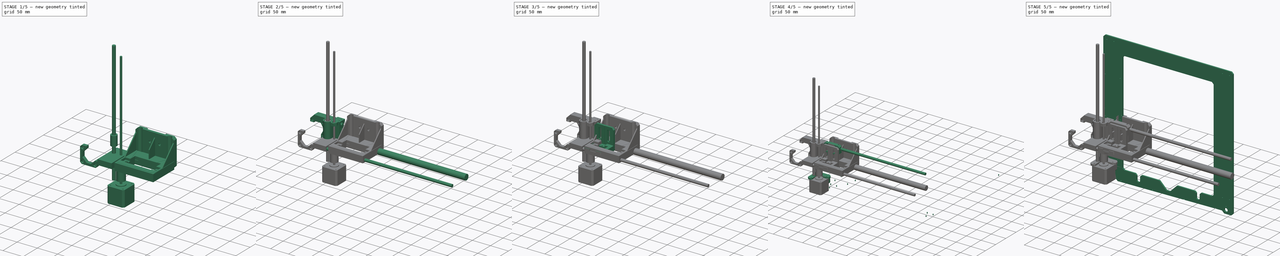
[diagram: build sequence overview — one tinted view per stage of 5, left to right]
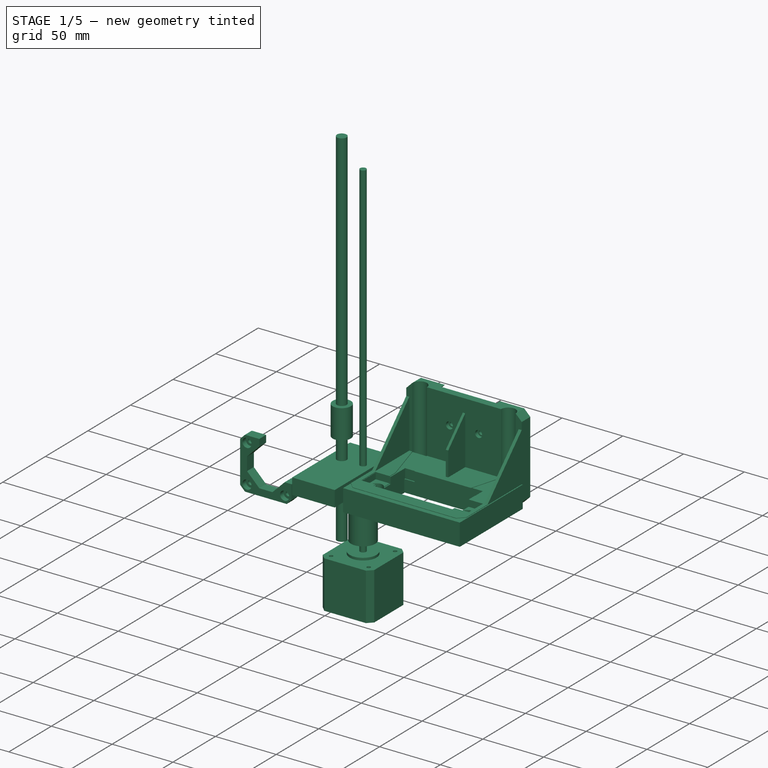
[diagram: stage 1 of 5 — iso view after this stage's code; geometry added in this stage tinted green]
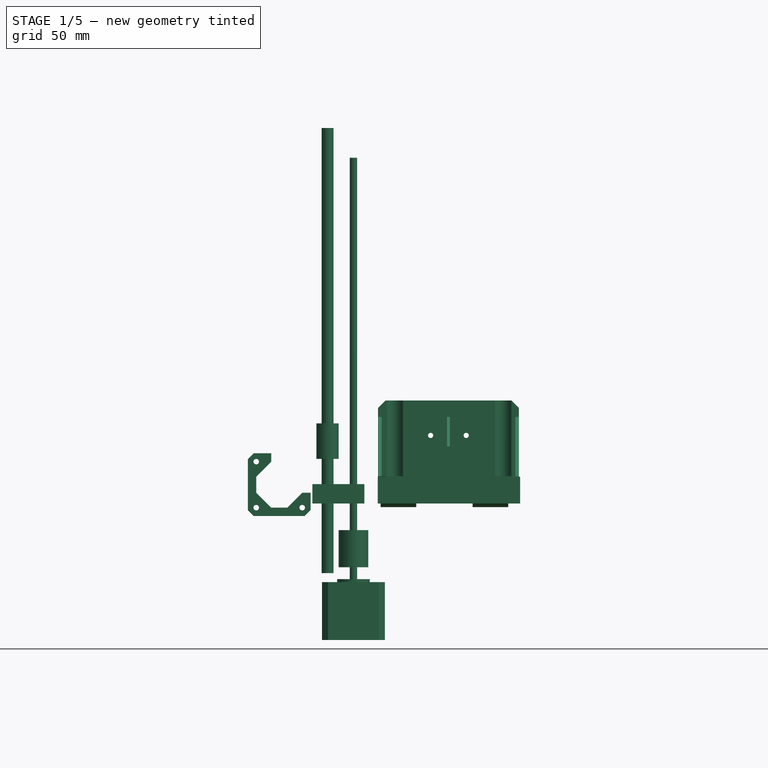
[diagram: stage 1 of 5 — front view after this stage's code; geometry added in this stage tinted green]
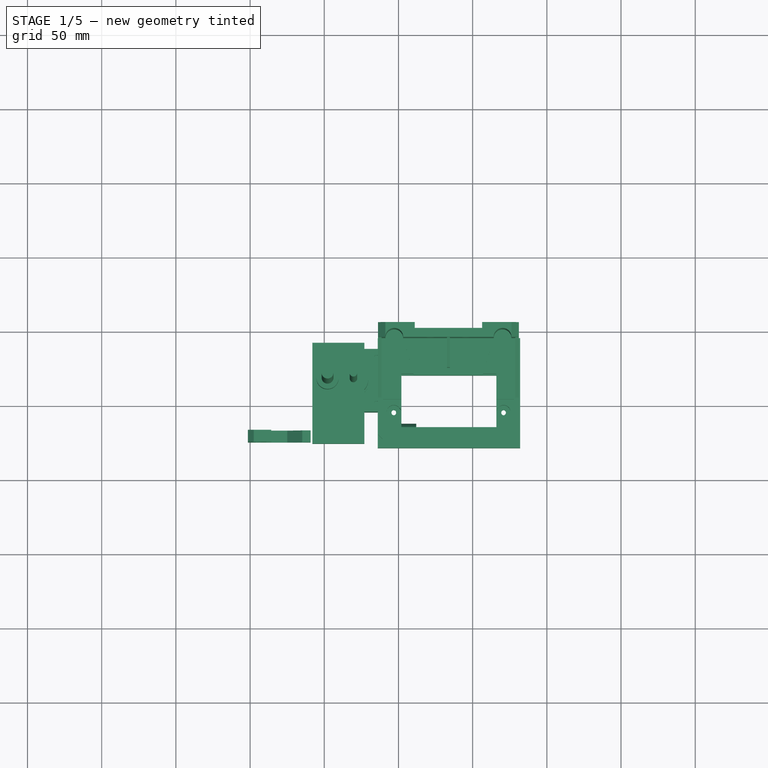
[diagram: stage 1 of 5 — top view after this stage's code; geometry added in this stage tinted green]
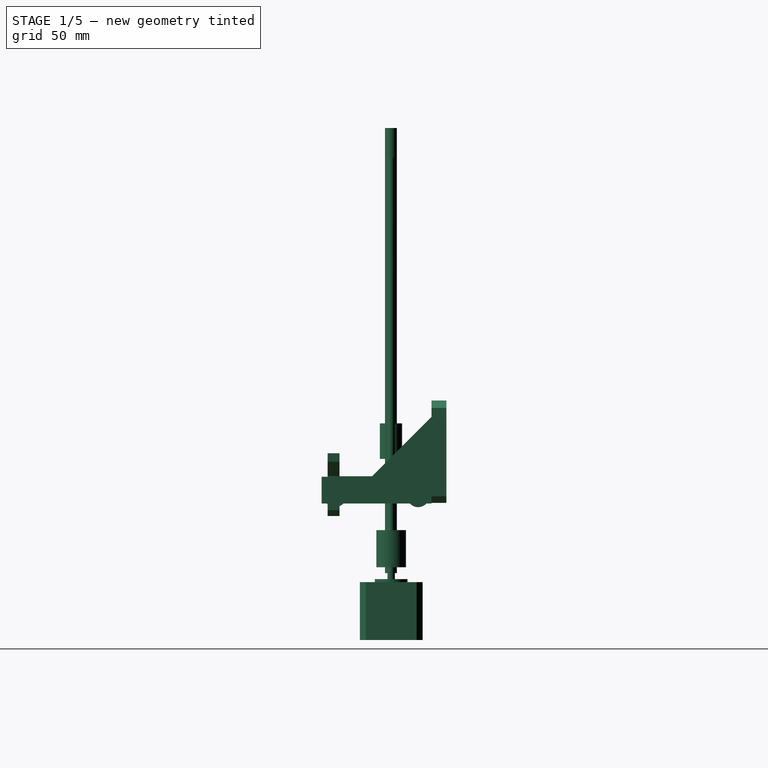
[diagram: stage 1 of 5 — right view after this stage's code; geometry added in this stage tinted green]
FCSTD DOCUMENT  (FreeCAD 0.16R4742 (Git))
Label: SF-CarroX-Horizontal
License: CC-BY 3.0
LicenseURL: http://creativecommons.org/licenses/by/3.0/
objects: Sketcher::SketchObject×51, Part::Extrusion×30, PartDesign::Pocket×18, Part::Cylinder×17, Part::Feature×13, PartDesign::Chamfer×11, Part::Box×8, App::DocumentObjectGroup×7, Part::MultiFuse×4, Part::Compound×4, PartDesign::Pad×4, Part::Cut×3, Part::FeaturePython×2, Part::Mirroring×1, App::MeasureDistance×1
note: 188 computed .brp shape members not serialized (recipe doc carries the construction recipe); baked Part::Feature solids carry a one-line shape summary decoded from their .brp

FEATURE [Part::Cylinder] Cylinder006  label="Cilindro"
  Angle = 360
  Height = 260
  Placement = pos=(19.65,-33.15,77) rot=(0,0,1;0rad)
  Radius = 2.5
FEATURE [Part::Cut] Cut002  label="acoplador"
  Placement = pos=(19.65,-33.15,61) rot=(0,0,1;0rad)
FEATURE [Part::Cylinder] Cylinder012  label="Cilindro003"
  Angle = 360
  Height = 300
  Placement = pos=(2.2,-33.3,57) rot=(0,0,1;0rad)
  Radius = 4
FEATURE [Part::Compound] Compound001
  Links = -> [Cylinder006,Cut002,Pad]
FEATURE [Part::Box] Box007  label="Cube001"
  Height = 18
  Length = 96
  Placement = pos=(36,-80,104) rot=(0,0,1;0rad)
  Width = 74
FEATURE [PartDesign::Chamfer] Chamfer010
  Placement = pos=(24,30,7) rot=(0,0,1;0rad)
  Size = 5
FEATURE [Part::Cylinder] Cylinder013  label="Cilindro004"
  Angle = 360
  Height = 24
  Placement = pos=(2.2,-33.3,134) rot=(0,0,1;0rad)
  Radius = 7.5
FEATURE [Part::Cylinder] Cylinder014  label="Cilindro005"
  Angle = 360
  Height = 24
  Placement = pos=(38,-71,109) rot=(0,1,0;1.5708rad)
  Radius = 7.5
FEATURE [Part::Cylinder] Cylinder015  label="Cilindro006"
  Angle = 360
  Height = 24
  Placement = pos=(100,-15,109) rot=(0,1,0;1.5708rad)
  Radius = 7.5
FEATURE [Part::Cylinder] Cylinder016  label="Cilindro007"
  Angle = 360
  Height = 24
  Placement = pos=(38,-15,109) rot=(0,1,0;1.5708rad)
  Radius = 7.5
FEATURE [Part::Box] Box008  label="Cube002"
  Height = 13
  Length = 35
  Placement = pos=(-8,-77,104) rot=(0,0,1;0rad)
  Width = 68
FEATURE [Part::Feature] Part__Feature  label="Document212"
  Placement = pos=(3600,2826,0) rot=(0,0,-1;1.5708rad)
  shape: bbox 17.95 x 18.5 x 17.95 mm, 95 faces (baked)
FEATURE [Part::Feature] Part__Feature001  label="correaX"
  Placement = pos=(3600,2826,0) rot=(0,0,-1;1.5708rad)
  shape: bbox 387.9 x 5.8 x 22.53 mm, 52 faces, 0 solids (baked)
FEATURE [Part::Compound] Compound002
  Links = -> [Part__Feature,Part__Feature001]
  Placement = pos=(36.2879,-20.966,-133) rot=(0,0,1;0rad)
FEATURE [Part::Compound] Compound003
  Links = -> [Pad002,Compound002]
FEATURE [Part::Feature] Compound004
  Placement = pos=(378,-96,0) rot=(0,0,1;3.14159rad)
  shape: bbox 402.6 x 65 x 42.3 mm, 169 faces, 2 solids (baked)
FEATURE [Sketcher::SketchObject] Sketch045
  ExternalGeometry = -> [Compound003]
  Placement = pos=(0,-68,0) rot=(1,0,0;1.5708rad)
  Support = -> Compound003 [Face2]
  sketch-geometry (23):
    g0: LineSegment StartX=-35.7705 StartY=137.8 StartZ=0 EndX=-35.7705 EndY=132.135 EndZ=0
    g1: LineSegment StartX=-35.7705 StartY=132.135 StartZ=0 EndX=-45.8346 EndY=122.071 EndZ=0
    g2: LineSegment StartX=-45.8346 StartY=122.071 StartZ=0 EndX=-45.8346 EndY=111.229 EndZ=0
    g3: LineSegment StartX=-45.8346 StartY=111.229 StartZ=0 EndX=-35.7705 EndY=101.165 EndZ=0
    g4: LineSegment StartX=-35.7705 StartY=101.165 StartZ=0 EndX=-24.9295 EndY=101.165 EndZ=0
    g5: LineSegment StartX=-24.9295 StartY=101.165 StartZ=0 EndX=-14.8654 EndY=111.229 EndZ=0
    g6: LineSegment StartX=-14.8654 StartY=111.229 StartZ=0 EndX=-9.2 EndY=111.229 EndZ=0
    g7: LineSegment StartX=-9.2 StartY=111.229 StartZ=0 EndX=-9.2 EndY=99.5 EndZ=0
    g8: LineSegment StartX=-9.2 StartY=99.5 StartZ=0 EndX=-13.2 EndY=95.5 EndZ=0
    g9: LineSegment StartX=-13.2 StartY=95.5 StartZ=0 EndX=-47.5 EndY=95.5 EndZ=0
    g10: LineSegment StartX=-47.5 StartY=95.5 StartZ=0 EndX=-51.5 EndY=99.5 EndZ=0
    g11: LineSegment StartX=-51.5 StartY=99.5 StartZ=0 EndX=-51.5 EndY=133.8 EndZ=0
    g12: LineSegment StartX=-51.5 StartY=133.8 StartZ=0 EndX=-47.5 EndY=137.8 EndZ=0
    g13: LineSegment StartX=-47.5 StartY=137.8 StartZ=0 EndX=-35.7705 EndY=137.8 EndZ=0
    g14: LineSegment [constr] StartX=-45.85 StartY=132.15 StartZ=0 EndX=-35.7705 EndY=132.135 EndZ=0
    g15: LineSegment [constr] StartX=-45.85 StartY=132.15 StartZ=0 EndX=-45.8572 EndY=122.071 EndZ=0
    g16: LineSegment [constr] StartX=-45.85 StartY=101.15 StartZ=0 EndX=-45.8346 EndY=111.229 EndZ=0
    g17: LineSegment [constr] StartX=-45.85 StartY=101.15 StartZ=0 EndX=-35.7705 EndY=101.165 EndZ=0
    g18: LineSegment [constr] StartX=-14.85 StartY=101.15 StartZ=0 EndX=-24.9295 EndY=101.165 EndZ=0
    g19: LineSegment [constr] StartX=-14.85 StartY=101.15 StartZ=0 EndX=-14.8654 EndY=111.229 EndZ=0
    g20: Circle CenterX=-45.85 CenterY=132.15 CenterZ=0 NormalX=0 NormalY=0 NormalZ=1 Radius=1.85
    g21: Circle CenterX=-45.85 CenterY=101.15 CenterZ=0 NormalX=0 NormalY=0 NormalZ=1 Radius=1.85
    g22: Circle CenterX=-14.85 CenterY=101.15 CenterZ=0 NormalX=0 NormalY=0 NormalZ=1 Radius=1.85
  constraints (54):
    c: Vertical(g0)
    c: Coincident(g0,g1)
    c: Coincident(g1,g2)
    c: Vertical(g2)
    c: Coincident(g2,g3)
    c: Coincident(g3,g4)
    c: Horizontal(g4)
    c: Coincident(g4,g5)
    c: Coincident(g5,g6)
    c: PointOnObject(g6,g-9)
    c: Horizontal(g6)
    c: Coincident(g6,g7)
    c: Coincident(g7,g-9)
    c: Coincident(g7,g8)
    c: Coincident(g8,g-3)
    c: Coincident(g8,g9)
    c: Coincident(g9,g-3)
    c: Coincident(g9,g10)
    c: Coincident(g10,g11)
    c: Coincident(g11,g12)
    c: Coincident(g12,g-4)
    c: Coincident(g12,g13)
    c: PointOnObject(g13,g-4)
    c: Coincident(g0,g13)
    c: Coincident(g11,g-10)
    c: Coincident(g10,g-10)
    c: Parallel(g1,g5)
    c: Parallel(g5,g12)
    c: Parallel(g10,g3)
    c: Equal(g5,g3)
    c: Equal(g3,g1)
    c: Equal(g0,g6)
    c: Coincident(g14,g-6)
    c: Coincident(g14,g0)
    c: Coincident(g15,g14)
    c: Coincident(g16,g-7)
    c: Coincident(g16,g2)
    c: Coincident(g17,g16)
    c: Coincident(g17,g3)
    c: Coincident(g18,g-8)
    c: Coincident(g18,g4)
    c: Coincident(g19,g18)
    c: Coincident(g19,g5)
    c: Equal(g14,g15)
    c: Equal(g15,g16)
    c: Equal(g16,g17)
    c: Equal(g17,g18)
    c: Equal(g18,g19)
    c: Coincident(g20,g14)
    c: Coincident(g21,g16)
    c: Coincident(g22,g18)
    c: Radius(g22) = 1.85
    c: Equal(g22,g21)
    c: Equal(g22,g20)
FEATURE [Part::Extrusion] Extrude_Sketch028  label="Sketch045_Extrude"
  Base = -> Sketch045
  Dir = (0,-8,0)
  Solid = true
FEATURE [Part::FeaturePython] Clone  label="Clone of Sketch045_Extrude"  # Draft clone (typed FeaturePython)
  Objects = -> [Extrude_Sketch028]
  Scale = (1,1,1)
FEATURE [Sketcher::SketchObject] Sketch046
  ExternalGeometry = -> [Clone]
  Placement = pos=(0,-76,0) rot=(1,0,0;1.5708rad)
  Support = -> Clone [Face19]
  sketch-geometry (3):
    g0: Circle CenterX=-45.85 CenterY=132.15 CenterZ=0 NormalX=0 NormalY=0 NormalZ=1 Radius=3.75
    g1: Circle CenterX=-45.85 CenterY=101.15 CenterZ=0 NormalX=0 NormalY=0 NormalZ=1 Radius=3.75
    g2: Circle CenterX=-14.85 CenterY=101.15 CenterZ=0 NormalX=0 NormalY=0 NormalZ=1 Radius=3.75
  constraints (6):
    c: Coincident(g0,g-3)
    c: Coincident(g1,g-4)
    c: Coincident(g2,g-5)
    c: Radius(g2) = 3.75
    c: Equal(g2,g0)
    c: Equal(g2,g1)
FEATURE [PartDesign::Pocket] Pocket014
  Length = 4
  Sketch = -> Sketch046
  Type = 0
FEATURE [App::DocumentObjectGroup] Group005
  Group = -> [Extrude_Sketch028,Clone,Pocket014]
FEATURE [Sketcher::SketchObject] Sketch047
  ExternalGeometry = -> [Box007]
  Placement = pos=(36,-80,122) rot=(0,0,1;0rad)
  Support = -> Box007 [Face6]
  sketch-geometry (5):
    g0: LineSegment [constr] StartX=0 StartY=24 StartZ=0 EndX=11 EndY=24 EndZ=0
    g1: LineSegment [constr] StartX=11 StartY=24 StartZ=0 EndX=85 EndY=24 EndZ=0
    g2: LineSegment [constr] StartX=85 StartY=24 StartZ=0 EndX=96 EndY=24 EndZ=0
    g3: Circle CenterX=11 CenterY=24 CenterZ=0 NormalX=0 NormalY=0 NormalZ=1 Radius=1.75
    g4: Circle CenterX=85 CenterY=24 CenterZ=0 NormalX=0 NormalY=0 NormalZ=1 Radius=1.75
  constraints (14):
    c: PointOnObject(g0,g-4)
    c: Horizontal(g0)
    c: Coincident(g0,g1)
    c: Horizontal(g1)
    c: Coincident(g1,g2)
    c: PointOnObject(g2,g-3)
    c: Horizontal(g2)
    c: Equal(g0,g2)
    c: Coincident(g3,g0)
    c: Coincident(g4,g1)
    c: Radius(g3) = 1.75
    c: Equal(g3,g4)
    c: Distance(g1) = 74
    c: Distance(g2,g-3) = 24
FEATURE [PartDesign::Pocket] Pocket015
  Length = 5
  Placement = pos=(36,-80,104) rot=(0,0,1;0rad)
  Sketch = -> Sketch047
  Type = 1
FEATURE [Sketcher::SketchObject] Sketch048
  ExternalGeometry = -> [Pocket015]
  Placement = pos=(36,-80,122) rot=(0,0,1;0rad)
  Support = -> Pocket015 [Face3]
  sketch-geometry (6):
    g0: LineSegment StartX=16 StartY=14 StartZ=0 EndX=80 EndY=14 EndZ=0
    g1: LineSegment StartX=80 StartY=14 StartZ=0 EndX=80 EndY=50 EndZ=0
    g2: LineSegment StartX=80 StartY=50 StartZ=0 EndX=16 EndY=50 EndZ=0
    g3: LineSegment StartX=16 StartY=50 StartZ=0 EndX=16 EndY=14 EndZ=0
    g4: LineSegment [constr] StartX=16 StartY=50 StartZ=0 EndX=0 EndY=50 EndZ=0
    g5: LineSegment [constr] StartX=80 StartY=50 StartZ=0 EndX=96 EndY=50 EndZ=0
  constraints (18):
    c: Coincident(g0,g1)
    c: Coincident(g1,g2)
    c: Coincident(g2,g3)
    c: Coincident(g3,g0)
    c: Horizontal(g0)
    c: Horizontal(g2)
    c: Vertical(g1)
    c: Vertical(g3)
    c: Coincident(g4,g2)
    c: PointOnObject(g4,g-2)
    c: Coincident(g5,g1)
    c: PointOnObject(g5,g-6)
    c: Horizontal(g5)
    c: Horizontal(g4)
    c: Equal(g5,g4)
    c: Distance(g2) = 64
    c: Distance(g0,g-5) = 14
    c: Distance(g1) = 36
FEATURE [PartDesign::Pocket] Pocket016
  Length = 5
  Placement = pos=(36,-80,104) rot=(0,0,1;0rad)
  Sketch = -> Sketch048
  Type = 1
FEATURE [Sketcher::SketchObject] Sketch049
  ExternalGeometry = -> [Pocket016]
  Placement = pos=(36,-80,122) rot=(0,0,1;0rad)
  Support = -> Pocket016 [Face3]
  sketch-geometry (6):
    g0: LineSegment StartX=3.75 StartY=33 StartZ=0 EndX=92.25 EndY=33 EndZ=0
    g1: LineSegment StartX=92.25 StartY=33 StartZ=0 EndX=92.25 EndY=16.5 EndZ=0
    g2: LineSegment StartX=92.25 StartY=16.5 StartZ=0 EndX=3.75 EndY=16.5 EndZ=0
    g3: LineSegment StartX=3.75 StartY=16.5 StartZ=0 EndX=3.75 EndY=33 EndZ=0
    g4: LineSegment [constr] StartX=3.75 StartY=33 StartZ=0 EndX=11 EndY=24 EndZ=0
    g5: LineSegment [constr] StartX=85 StartY=24 StartZ=0 EndX=92.25 EndY=33 EndZ=0
  constraints (16):
    c: Coincident(g0,g1)
    c: Coincident(g1,g2)
    c: Coincident(g2,g3)
    c: Coincident(g3,g0)
    c: Horizontal(g0)
    c: Horizontal(g2)
    c: Vertical(g1)
    c: Vertical(g3)
    c: Distance(g0) = 88.5
    c: Distance(g3) = 16.5
    c: Distance(g-4,g0) = 9
    c: Coincident(g4,g0)
    c: Coincident(g4,g-3)
    c: Coincident(g5,g-4)
    c: Coincident(g5,g0)
    c: Equal(g5,g4)
FEATURE [PartDesign::Pocket] Pocket017
  Length = 5.4
  Placement = pos=(36,-80,104) rot=(0,0,1;0rad)
  Sketch = -> Sketch049
  Type = 0
FEATURE [Sketcher::SketchObject] Sketch050
  ExternalGeometry = -> [Pocket017]
  Placement = pos=(36,-80,116.6) rot=(0,0,1;0rad)
  Support = -> Pocket017 [Face19]
  sketch-geometry (2):
    g0: Circle CenterX=11 CenterY=24 CenterZ=0 NormalX=0 NormalY=0 NormalZ=1 Radius=5
    g1: Circle CenterX=85 CenterY=24 CenterZ=0 NormalX=0 NormalY=0 NormalZ=1 Radius=5
  constraints (4):
    c: Coincident(g0,g-4)
    c: Coincident(g1,g-3)
    c: Radius(g0) = 5
    c: Equal(g0,g1)
FEATURE [PartDesign::Pocket] Pocket018
  Length = 10
  Placement = pos=(36,-80,104) rot=(0,0,1;0rad)
  Sketch = -> Sketch050
  Type = 0
FEATURE [App::DocumentObjectGroup] Group006
  Group = -> [Box007,Pocket015,Pocket016,Pocket017,Pocket018]
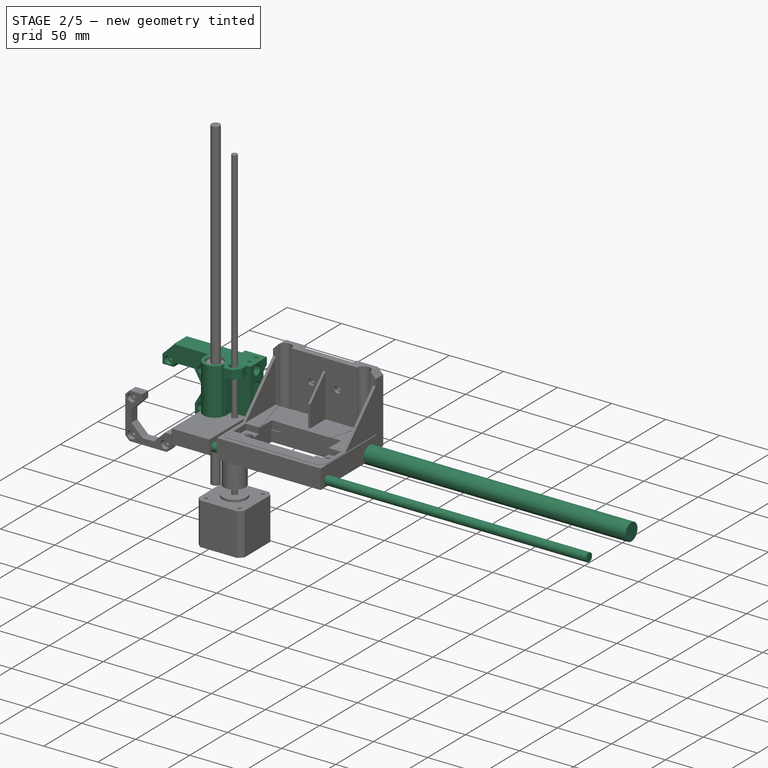
[diagram: stage 2 of 5 — iso view after this stage's code; geometry added in this stage tinted green]
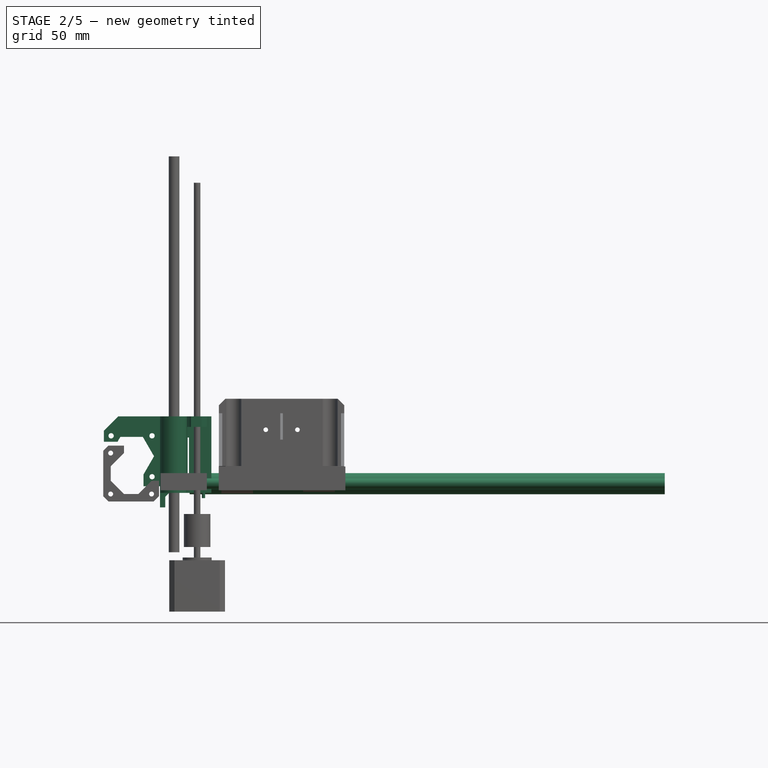
[diagram: stage 2 of 5 — front view after this stage's code; geometry added in this stage tinted green]
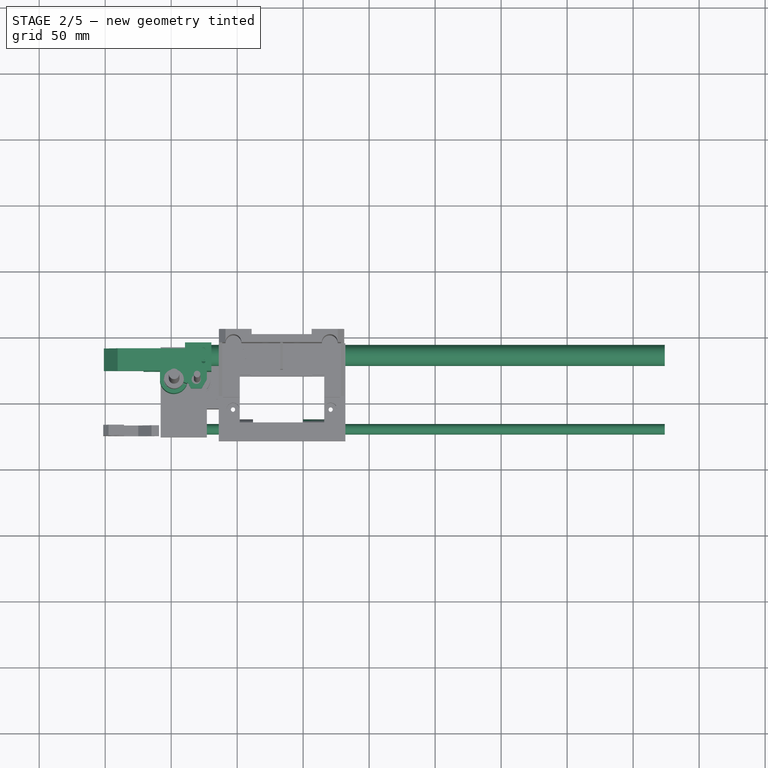
[diagram: stage 2 of 5 — top view after this stage's code; geometry added in this stage tinted green]
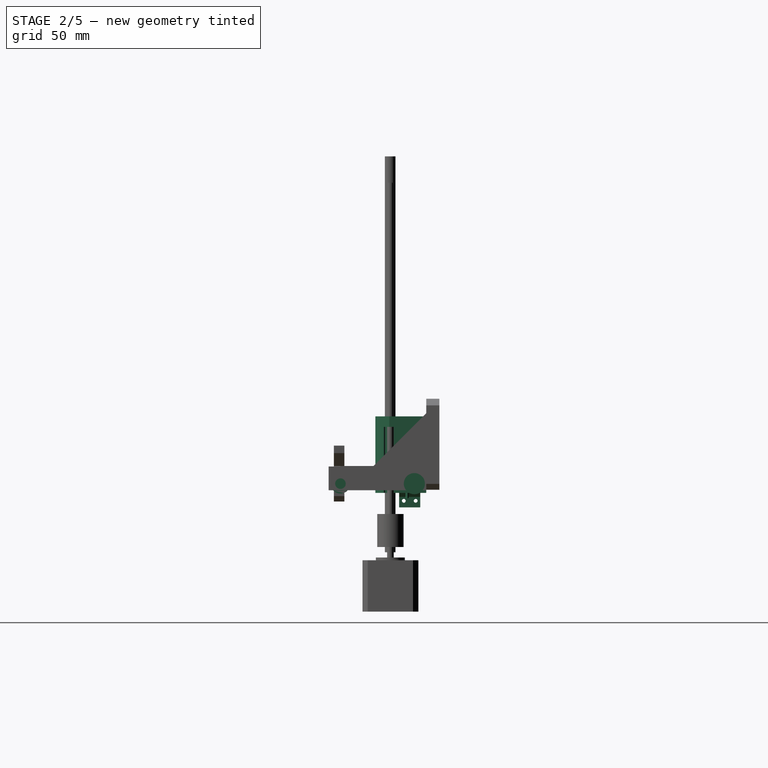
[diagram: stage 2 of 5 — right view after this stage's code; geometry added in this stage tinted green]
FEATURE [App::DocumentObjectGroup] Group004  label="Soporte-ExMkb"
  Group = -> [Pocket004,Fusion001,Pocket001,Cylinder004,Chamfer,Chamfer001,Pocket002,Chamfer002,Chamfer003,Cylinder005,Pocket003,Fusion002,Pad003,Pad004,Pocket006,Chamfer004,Chamfer005,Chamfer006]
FEATURE [Part::Box] Box005
  Height = 12
  Length = 4
  Placement = pos=(-8.5,-26.5,91) rot=(0,0,1;0rad)
  Width = 16
FEATURE [Part::MultiFuse] Fusion003
  Shapes = -> [Box005]
FEATURE [PartDesign::Chamfer] Chamfer007
  Base = -> Fusion003 [Edge94]
  Size = 3
FEATURE [PartDesign::Chamfer] Chamfer008
  Base = -> Chamfer007 [Edge93]
  Size = 4.29
FEATURE [Sketcher::SketchObject] Sketch036
  ExternalGeometry = -> [Chamfer008]
  Placement = pos=(0,0,102) rot=(1,0,0;3.14159rad)
  Support = -> Chamfer008 [Face8]
  sketch-geometry (1):
    g0: Circle CenterX=24.5 CenterY=11.5 CenterZ=0 NormalX=0 NormalY=0 NormalZ=1 Radius=1.45
  constraints (3):
    c: Radius(g0) = 1.45
    c: Distance(g0,g-3) = 5.5
    c: Distance(g0,g-5) = 6
FEATURE [PartDesign::Pocket] Pocket007
  Length = 15
  Sketch = -> Sketch036
  Type = 0
FEATURE [Sketcher::SketchObject] Sketch037
  ExternalGeometry = -> [Pocket007]
  Placement = pos=(0,0,102) rot=(1,0,0;3.14159rad)
  Support = -> Pocket007 [Face6]
  sketch-geometry (2):
    g0: LineSegment [constr] StartX=24.5 StartY=27.5 StartZ=0 EndX=24.5 EndY=6 EndZ=0
    g1: Circle CenterX=24.5 CenterY=20.5 CenterZ=0 NormalX=0 NormalY=0 NormalZ=1 Radius=1.2
  constraints (7):
    c: PointOnObject(g0,g-4)
    c: PointOnObject(g0,g-5)
    c: Vertical(g0)
    c: PointOnObject(g-3,g0)
    c: PointOnObject(g1,g0)
    c: Radius(g1) = 1.2
    c: Distance(g-3,g1) = 9
FEATURE [PartDesign::Pad] Pad005
  Length = 4
  Length2 = 100
  Sketch = -> Sketch037
  Type = 0
FEATURE [Sketcher::SketchObject] Sketch038
  ExternalGeometry = -> [Pad005]
  Placement = pos=(-8.5,0,0) rot=(0.57735,-0.57735,-0.57735;2.0944rad)
  Support = -> Pad005 [Face10]
  sketch-geometry (5):
    g0: Circle CenterX=14 CenterY=96 CenterZ=0 NormalX=0 NormalY=0 NormalZ=1 Radius=1.45
    g1: Circle CenterX=23 CenterY=96 CenterZ=0 NormalX=0 NormalY=0 NormalZ=1 Radius=1.45
    g2: LineSegment [constr] StartX=10.5 StartY=96 StartZ=0 EndX=14 EndY=96 EndZ=0
    g3: LineSegment [constr] StartX=14 StartY=96 StartZ=0 EndX=23 EndY=96 EndZ=0
    g4: LineSegment [constr] StartX=23 StartY=96 StartZ=0 EndX=26.5 EndY=96 EndZ=0
  constraints (14):
    c: Horizontal(g2)
    c: Coincident(g2,g3)
    c: Horizontal(g3)
    c: Coincident(g3,g4)
    c: PointOnObject(g4,g-3)
    c: Horizontal(g4)
    c: PointOnObject(g2,g-4)
    c: Distance(g3) = 9
    c: Coincident(g0,g2)
    c: Coincident(g1,g3)
    c: Distance(g2,g0) = 3.5
    c: Radius(g0) = 1.45
    c: Distance(g4,g-3) = 5
    c: Equal(g1,g0)
FEATURE [PartDesign::Pocket] Pocket008
  Length = 10
  Sketch = -> Sketch038
  Type = 0
FEATURE [Sketcher::SketchObject] Sketch039
  ExternalGeometry = -> [Pocket008]
  Placement = pos=(0,0,160) rot=(0,0,1;0rad)
  Support = -> Pocket008 [Face21]
  sketch-geometry (4):
    g0: LineSegment StartX=30.5 StartY=-6 StartZ=0 EndX=10.5 EndY=-6 EndZ=0
    g1: LineSegment StartX=10.5 StartY=-6 StartZ=0 EndX=10.5 EndY=-11.8461 EndZ=0
    g2: LineSegment StartX=10.5 StartY=-11.8461 StartZ=0 EndX=30.5 EndY=-11.8461 EndZ=0
    g3: LineSegment StartX=30.5 StartY=-11.8461 StartZ=0 EndX=30.5 EndY=-6 EndZ=0
  constraints (10):
    c: Coincident(g0,g1)
    c: Coincident(g1,g2)
    c: Coincident(g2,g3)
    c: Coincident(g3,g0)
    c: Horizontal(g0)
    c: Horizontal(g2)
    c: Vertical(g1)
    c: Vertical(g3)
    c: Coincident(g0,g-6)
    c: Coincident(g0,g-5)
FEATURE [PartDesign::Pad] Pad006
  Length = 10
  Length2 = 100
  Reversed = true
  Sketch = -> Sketch039
  Type = 0
FEATURE [PartDesign::Chamfer] Chamfer009
  Base = -> Pad006 [Edge352]
  Size = 4
FEATURE [Sketcher::SketchObject] Sketch040
  ExternalGeometry = -> [Chamfer009]
  Placement = pos=(0,0,160) rot=(0,0,1;0rad)
  Support = -> Chamfer009 [Face6]
  sketch-geometry (2):
    g0: Circle CenterX=24.5 CenterY=-11.5 CenterZ=0 NormalX=0 NormalY=0 NormalZ=1 Radius=1.45
    g1: Circle CenterX=24.5 CenterY=-20.5 CenterZ=0 NormalX=0 NormalY=0 NormalZ=1 Radius=1.45
  constraints (4):
    c: Coincident(g0,g-4)
    c: Coincident(g1,g-5)
    c: Equal(g0,g1)
    c: Equal(g1,g-4)
FEATURE [PartDesign::Pocket] Pocket009
  Length = 9
  Sketch = -> Sketch040
  Type = 0
FEATURE [Sketcher::SketchObject] Sketch041
  ExternalGeometry = -> [Pocket009]
  Placement = pos=(0,0,160) rot=(0,0,1;0rad)
  Support = -> Pocket009 [Face6]
  sketch-geometry (2):
    g0: Circle [constr] CenterX=19 CenterY=-34 CenterZ=0 NormalX=0 NormalY=0 NormalZ=1 Radius=2.8338
    g1: Circle CenterX=19 CenterY=-34 CenterZ=0 NormalX=0 NormalY=0 NormalZ=1 Radius=3.5
  constraints (5):
    c: PointOnObject(g-4,g0)
    c: PointOnObject(g-3,g0)
    c: PointOnObject(g-5,g0)
    c: Coincident(g1,g0)
    c: Radius(g1) = 3.5
FEATURE [PartDesign::Pocket] Pocket010
  Length = 5
  Sketch = -> Sketch041
  Type = 0
FEATURE [Sketcher::SketchObject] Sketch042
  ExternalGeometry = -> [Pocket010]
  Placement = pos=(0,-27.5,0) rot=(1,0,0;1.5708rad)
  Support = -> Pocket010 [Face121]
  sketch-geometry (6):
    g0: Circle [constr] CenterX=-45.5 CenterY=145.25 CenterZ=0 NormalX=0 NormalY=0 NormalZ=1 Radius=3.1
    g1: Circle [constr] CenterX=-14.5 CenterY=145.25 CenterZ=0 NormalX=0 NormalY=0 NormalZ=1 Radius=3.1
    g2: Circle [constr] CenterX=-14.5 CenterY=114.25 CenterZ=0 NormalX=0 NormalY=0 NormalZ=1 Radius=3.1
    g3: Circle CenterX=-45.5 CenterY=145.25 CenterZ=0 NormalX=0 NormalY=0 NormalZ=1 Radius=3.7
    g4: Circle CenterX=-14.5 CenterY=145.25 CenterZ=0 NormalX=0 NormalY=0 NormalZ=1 Radius=3.7
    g5: Circle CenterX=-14.5 CenterY=114.25 CenterZ=0 NormalX=0 NormalY=0 NormalZ=1 Radius=3.7
  constraints (15):
    c: PointOnObject(g-5,g0)
    c: PointOnObject(g-4,g0)
    c: PointOnObject(g-3,g0)
    c: PointOnObject(g-6,g1)
    c: PointOnObject(g-8,g1)
    c: PointOnObject(g-7,g1)
    c: PointOnObject(g-9,g2)
    c: PointOnObject(g-11,g2)
    c: PointOnObject(g-10,g2)
    c: Coincident(g3,g0)
    c: Coincident(g4,g1)
    c: Coincident(g5,g2)
    c: Radius(g5) = 3.7
    c: Equal(g5,g4)
    c: Equal(g5,g3)
FEATURE [PartDesign::Pocket] Pocket011
  Length = 4
  Sketch = -> Sketch042
  Type = 0
FEATURE [Sketcher::SketchObject] Sketch043
  ExternalGeometry = -> [Pocket011]
  Placement = pos=(0,-27.5,0) rot=(1,0,0;1.5708rad)
  Support = -> Pocket011 [Face121]
  sketch-geometry (3):
    g0: Circle CenterX=-45.5 CenterY=145.25 CenterZ=0 NormalX=0 NormalY=0 NormalZ=1 Radius=2
    g1: Circle CenterX=-14.5 CenterY=145.25 CenterZ=0 NormalX=0 NormalY=0 NormalZ=1 Radius=2
    g2: Circle CenterX=-14.5 CenterY=114.25 CenterZ=0 NormalX=0 NormalY=0 NormalZ=1 Radius=2
  constraints (6):
    c: Coincident(g0,g-3)
    c: Coincident(g1,g-4)
    c: Coincident(g2,g-5)
    c: Radius(g1) = 2
    c: Equal(g1,g2)
    c: Equal(g1,g0)
FEATURE [PartDesign::Pocket] Pocket012
  Length = 17
  Sketch = -> Sketch043
  Type = 1
FEATURE [Sketcher::SketchObject] Sketch044
  ExternalGeometry = -> [Pocket012]
  Placement = pos=(0,0,152) rot=(1,0,0;3.14159rad)
  Support = -> Pocket012 [Face189]
  sketch-geometry (9):
    g0: LineSegment [constr] StartX=21.25 StartY=37.8971 StartZ=0 EndX=16.75 EndY=30.1029 EndZ=0
    g1: LineSegment [constr] StartX=16.75 StartY=37.8971 StartZ=0 EndX=21.25 EndY=30.1029 EndZ=0
    g2: LineSegment StartX=21.3816 StartY=38.125 StartZ=0 EndX=16.6184 EndY=38.125 EndZ=0
    g3: LineSegment StartX=16.6184 StartY=38.125 StartZ=0 EndX=14.2369 EndY=34 EndZ=0
    g4: LineSegment StartX=14.2369 StartY=34 StartZ=0 EndX=16.6184 EndY=29.875 EndZ=0
    g5: LineSegment StartX=16.6184 StartY=29.875 StartZ=0 EndX=21.3816 EndY=29.875 EndZ=0
    g6: LineSegment StartX=21.3816 StartY=29.875 StartZ=0 EndX=23.7631 EndY=34 EndZ=0
    g7: LineSegment StartX=23.7631 StartY=34 StartZ=0 EndX=21.3816 EndY=38.125 EndZ=0
    g8: Circle [constr] CenterX=19 CenterY=34 CenterZ=0 NormalX=0 NormalY=0 NormalZ=1 Radius=4.76314
  constraints (22):
    c: Coincident(g0,g-4)
    c: Coincident(g0,g-3)
    c: Coincident(g1,g-4)
    c: Coincident(g1,g-3)
    c: Coincident(g2,g3)
    c: Coincident(g3,g4)
    c: Coincident(g4,g5)
    c: Coincident(g5,g6)
    c: Coincident(g6,g7)
    c: Coincident(g7,g2)
    c: Equal(g2, g3-g7) x5
    c: PointOnObject(g2,g8)
    c: PointOnObject(g3,g8)
    c: PointOnObject(g4,g8)
    c: PointOnObject(g5,g8)
    c: PointOnObject(g6,g8)
    c: PointOnObject(g7,g8)
    c: PointOnObject(g5,g0)
    c: PointOnObject(g8,g0)
    c: PointOnObject(g8,g1)
    c: Parallel(g-4,g2)
    c: Distance(g2,g5) = 8.25
FEATURE [PartDesign::Pocket] Pocket013
  Length = 5
  Sketch = -> Sketch044
  Type = 0
FEATURE [App::DocumentObjectGroup] Grupo  label="Xmotor-endstops"
  Group = -> [Fusion003,Chamfer007,Chamfer008,Pocket007,Pad005,Pocket008,Pad006,Chamfer009,Pocket009,Pocket010,Pocket011,Pocket012,Pocket013]
FEATURE [Part::Cylinder] Cylinder007  label="Varilla8mm002"
  Angle = 360
  Height = 360
  Placement = pos=(14,-15,109) rot=(0,1,0;1.5708rad)
  Radius = 4
FEATURE [Part::Cylinder] Cylinder008  label="Varilla8mm003"
  Angle = 360
  Height = 360
  Placement = pos=(14,-71,109) rot=(0,1,0;1.5708rad)
  Radius = 4
FEATURE [App::MeasureDistance] Distance  label="Distance: 45.000"
  Distance = 45
  P1 = (374,-19,150)
  P2 = (374,-19,105)
FEATURE [Part::Cylinder] Cylinder009  label="Varilla8mm004"
  Angle = 360
  Height = 360
  Placement = pos=(14,-15,109) rot=(0,1,0;1.5708rad)
  Radius = 8
FEATURE [Part::Box] Box006  label="Cube"
  Height = 13
  Length = 35
  Placement = pos=(-8,-77,104) rot=(0,0,1;0rad)
  Width = 68
FEATURE [Part::Cylinder] Cylinder010  label="Cilindro001"
  Angle = 360
  Height = 24
  Placement = pos=(2.2,-33.3,104) rot=(0,0,1;0rad)
  Radius = 7.5
FEATURE [Part::Cylinder] Cylinder011  label="Cilindro002"
  Angle = 360
  Height = 24
  Placement = pos=(100,-71,109) rot=(0,1,0;1.5708rad)
  Radius = 7.5
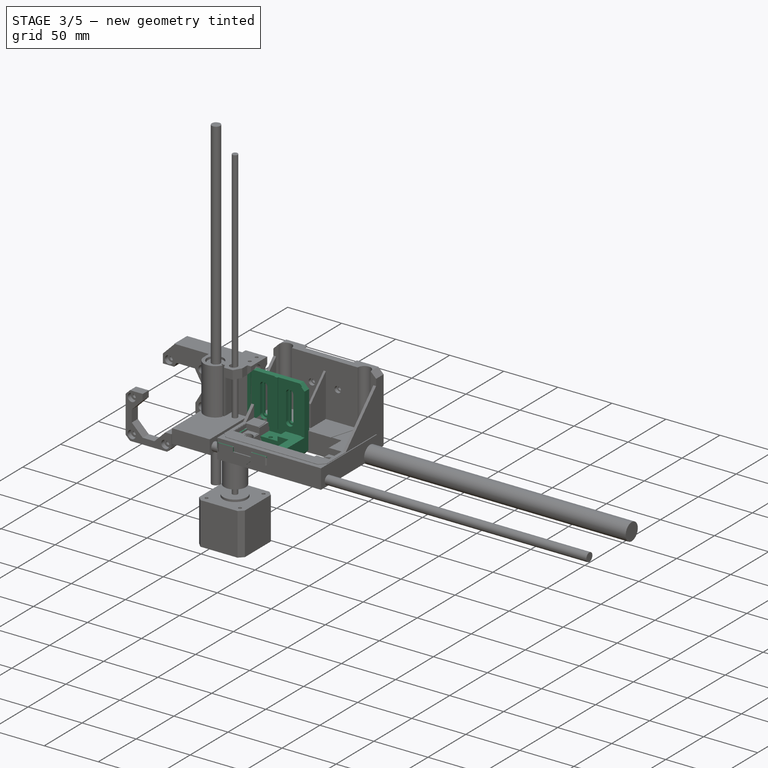
[diagram: stage 3 of 5 — iso view after this stage's code; geometry added in this stage tinted green]
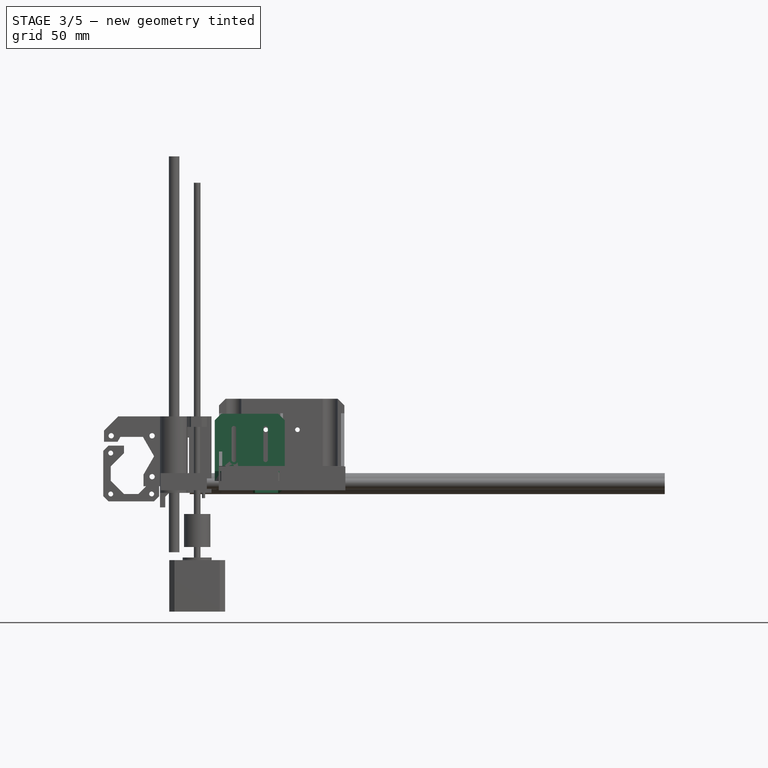
[diagram: stage 3 of 5 — front view after this stage's code; geometry added in this stage tinted green]
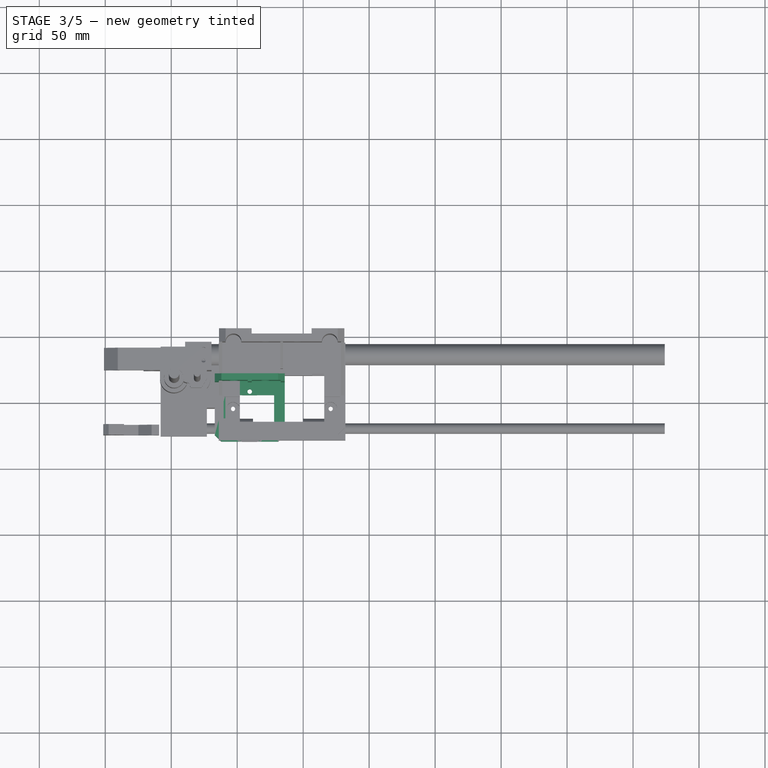
[diagram: stage 3 of 5 — top view after this stage's code; geometry added in this stage tinted green]
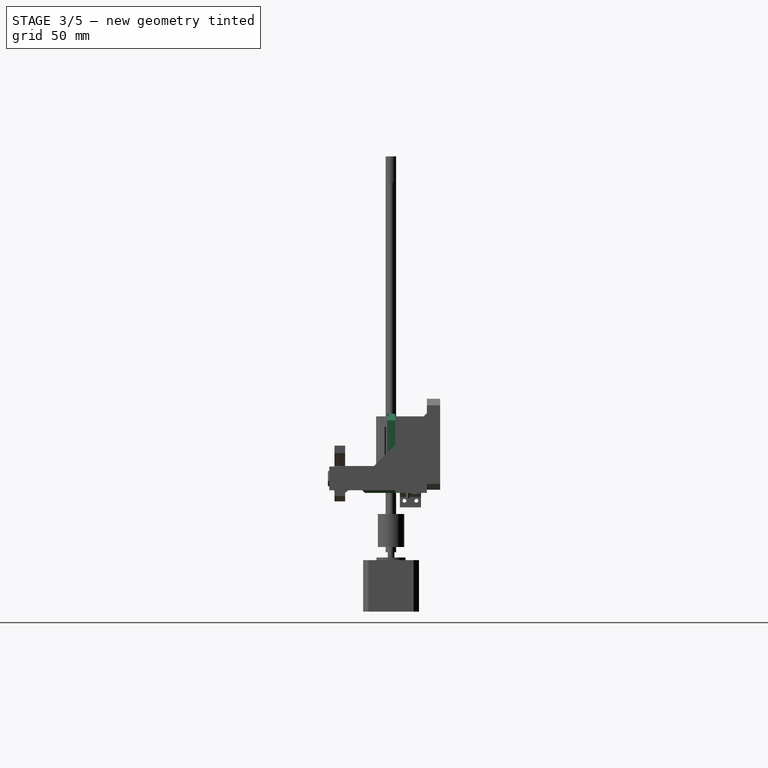
[diagram: stage 3 of 5 — right view after this stage's code; geometry added in this stage tinted green]
FEATURE [Part::Feature] Pad  label="NEMA017-"
  Placement = pos=(-1.5,-54.3,51) rot=(-1,0,0;1.5708rad)
  shape: bbox 42.3 x 42.3 x 65 mm, 22 faces (baked)
FEATURE [Part::Feature] Pad001  label="NEMA017-001"
  Placement = pos=(325.5,-54.3,51) rot=(-1,0,0;1.5708rad)
  shape: bbox 42.3 x 42.3 x 65 mm, 22 faces (baked)
FEATURE [App::DocumentObjectGroup] Group001  label="Z"
  Group = -> [Part__Mirroring,Pad,Pad001]
FEATURE [Part::Feature] Pad002  label="NEMA017-002"
  Placement = pos=(-51.5,-68,95.5) rot=(0,0,1;0rad)
  shape: bbox 42.3 x 65 x 42.3 mm, 22 faces (baked)
FEATURE [Part::Feature] Solid003  label="EndstopX"
  Placement = pos=(23,-16,99) rot=(0.57735,0.57735,0.57735;4.18879rad)
  shape: bbox 19.83 x 19.7 x 6 mm, 382 faces (baked)
FEATURE [Part::Feature] Solid004  label="EndstopZ"
  Placement = pos=(-11,-18,98) rot=(-1,0,0;1.5708rad)
  shape: bbox 6 x 19.7 x 19.83 mm, 382 faces (baked)
FEATURE [Part::Feature] difference  label="XmotorPrusa"
  Placement = pos=(2,-34,160) rot=(-0.707107,0.707107,0;3.14159rad)
  shape: bbox 81.5 x 34 x 58 mm, 364 faces (baked)
FEATURE [App::DocumentObjectGroup] Group002  label="X"
  Group = -> [Solid,Solid001,Solid002,Cylinder,Cylinder001,Cylinder002,Cylinder003,Compound,Pad002,Solid003,Solid004,difference]
FEATURE [Part::Box] Box
  Height = 60
  Length = 53
  Placement = pos=(33,-30,102) rot=(0,0,1;0rad)
  Width = 5
FEATURE [Part::Box] Box001
  Height = 5
  Length = 53
  Placement = pos=(33,-76,111) rot=(0,0,1;0rad)
  Width = 46
FEATURE [Part::Box] Box002
  Height = 12
  Length = 5
  Placement = pos=(81,-56,102) rot=(0,0,1;0rad)
  Width = 30
FEATURE [Part::Box] Box003
  Height = 12
  Length = 5
  Placement = pos=(33,-56,102) rot=(0,0,1;0rad)
  Width = 30
FEATURE [Part::MultiFuse] Fusion001
  Placement = pos=(0,-5,0) rot=(0,0,1;0rad)
  Shapes = -> [Box,Box001,Box002,Box003]
FEATURE [Sketcher::SketchObject] Sketch028
  ExternalGeometry = -> [Fusion001]
  Placement = pos=(0,-5,116) rot=(0,0,1;0rad)
  Support = -> Fusion001 [Face9]
  sketch-geometry (12):
    g0: LineSegment [constr] StartX=59.5 StartY=-30 StartZ=0 EndX=59.5 EndY=-38 EndZ=0
    g1: LineSegment [constr] StartX=59.5 StartY=-38 StartZ=0 EndX=59.5 EndY=-70 EndZ=0
    g2: LineSegment [constr] StartX=59.5 StartY=-70 StartZ=0 EndX=59.5 EndY=-76 EndZ=0
    g3: LineSegment [constr] StartX=86 StartY=-70 StartZ=0 EndX=59.5 EndY=-70 EndZ=0
    g4: LineSegment [constr] StartX=59.5 StartY=-70 StartZ=0 EndX=33 EndY=-70 EndZ=0
    g5: Circle CenterX=59.5 CenterY=-70 CenterZ=0 NormalX=0 NormalY=0 NormalZ=1 Radius=1.75
    g6: Circle CenterX=59.5 CenterY=-38 CenterZ=0 NormalX=0 NormalY=0 NormalZ=1 Radius=1.75
    g7: Circle CenterX=59.5 CenterY=-54 CenterZ=0 NormalX=0 NormalY=0 NormalZ=1 Radius=13.25
    g8: GeomPoint [constr] X=59.5 Y=-67.25 Z=0
    g9: GeomPoint [constr] X=59.5 Y=-40.75 Z=0
    g10: GeomPoint [constr] X=59.5 Y=-68.25 Z=0
    g11: GeomPoint [constr] X=59.5 Y=-39.75 Z=0
  constraints (31):
    c: PointOnObject(g0,g-6)
    c: Vertical(g0)
    c: Coincident(g0,g1)
    c: Vertical(g1)
    c: Coincident(g1,g2)
    c: PointOnObject(g2,g-3)
    c: Vertical(g2)
    c: PointOnObject(g3,g-4)
    c: Coincident(g3,g1)
    c: Horizontal(g3)
    c: Coincident(g3,g4)
    c: PointOnObject(g4,g-5)
    c: Horizontal(g4)
    c: Equal(g4,g3)
    c: Distance(g0) = 8
    c: Distance(g1) = 32
    c: Coincident(g5,g1)
    c: Coincident(g6,g0)
    c: Equal(g5,g6)
    c: Radius(g6) = 1.75
    c: PointOnObject(g7,g1)
    c: PointOnObject(g8,g7)
    c: PointOnObject(g9,g7)
    c: PointOnObject(g8,g1)
    c: PointOnObject(g9,g1)
    c: PointOnObject(g10,g5)
    c: PointOnObject(g10,g1)
    c: PointOnObject(g11,g6)
    c: PointOnObject(g11,g1)
    c: Distance(g11,g9) = 1
    c: Distance(g10,g8) = 1
FEATURE [PartDesign::Pocket] Pocket001
  Length = 5
  Placement = pos=(0,-5,0) rot=(0,0,1;0rad)
  Sketch = -> Sketch028
  Type = 0
FEATURE [PartDesign::Chamfer] Chamfer
  Base = -> Pocket001 [Edge18,Edge20]
  Placement = pos=(0,-5,0) rot=(0,0,1;0rad)
  Size = 8
FEATURE [PartDesign::Chamfer] Chamfer001
  Base = -> Chamfer [Edge20,Edge24]
  Placement = pos=(0,-5,0) rot=(0,0,1;0rad)
  Size = 4
FEATURE [Sketcher::SketchObject] Sketch029
  ExternalGeometry = -> [Chamfer001]
  Placement = pos=(0,-5,116) rot=(0,0,1;0rad)
  Support = -> Chamfer001 [Face12]
  sketch-geometry (6):
    g0: LineSegment StartX=51.25 StartY=-30 StartZ=0 EndX=67.75 EndY=-30 EndZ=0
    g1: LineSegment StartX=67.75 StartY=-30 StartZ=0 EndX=67.75 EndY=-76 EndZ=0
    g2: LineSegment StartX=67.75 StartY=-76 StartZ=0 EndX=51.25 EndY=-76 EndZ=0
    g3: LineSegment StartX=51.25 StartY=-76 StartZ=0 EndX=51.25 EndY=-30 EndZ=0
    g4: LineSegment [constr] StartX=33 StartY=-76 StartZ=0 EndX=51.25 EndY=-76 EndZ=0
    g5: LineSegment [constr] StartX=86 StartY=-76 StartZ=0 EndX=67.75 EndY=-76 EndZ=0
  constraints (16):
    c: Coincident(g0,g1)
    c: Coincident(g1,g2)
    c: Coincident(g2,g3)
    c: Coincident(g3,g0)
    c: Horizontal(g0)
    c: Horizontal(g2)
    c: Vertical(g1)
    c: Vertical(g3)
    c: PointOnObject(g0,g-3)
    c: PointOnObject(g1,g-4)
    c: Coincident(g4,g-4)
    c: Coincident(g5,g-4)
    c: Equal(g4,g5)
    c: Coincident(g4,g2)
    c: Coincident(g1,g5)
    c: Distance(g2,g1) = 16.5
FEATURE [PartDesign::Pocket] Pocket002
  Length = 1.5
  Placement = pos=(0,-5,0) rot=(0,0,1;0rad)
  Sketch = -> Sketch029
  Type = 0
FEATURE [PartDesign::Chamfer] Chamfer002
  Base = -> Pocket002 [Edge39,Edge11]
  Placement = pos=(0,-5,0) rot=(0,0,1;0rad)
  Size = 5
FEATURE [PartDesign::Chamfer] Chamfer003
  Base = -> Chamfer002 [Edge43,Edge8]
  Placement = pos=(0,-5,0) rot=(0,0,1;0rad)
  Size = 5
FEATURE [Sketcher::SketchObject] Sketch030
  ExternalGeometry = -> [Chamfer003]
  Placement = pos=(0,-35,0) rot=(1,0,0;1.5708rad)
  Support = -> Chamfer003 [Face2]
  sketch-geometry (19):
    g0: LineSegment [constr] StartX=33 StartY=127 StartZ=0 EndX=47.5 EndY=127 EndZ=0
    g1: LineSegment [constr] StartX=47.5 StartY=127 StartZ=0 EndX=71.5 EndY=127 EndZ=0
    g2: LineSegment [constr] StartX=71.5 StartY=127 StartZ=0 EndX=86 EndY=127 EndZ=0
    g3: LineSegment [constr] StartX=47.5 StartY=116 StartZ=0 EndX=47.5 EndY=127 EndZ=0
    g4: LineSegment [constr] StartX=47.5 StartY=127 StartZ=0 EndX=47.5 EndY=151 EndZ=0
    g5: LineSegment [constr] StartX=71.5 StartY=162 StartZ=0 EndX=71.5 EndY=151 EndZ=0
    g6: LineSegment [constr] StartX=71.5 StartY=151 StartZ=0 EndX=71.5 EndY=127 EndZ=0
    g7: LineSegment [constr] StartX=71.5 StartY=127 StartZ=0 EndX=71.5 EndY=116 EndZ=0
    g8: LineSegment StartX=49.2 StartY=151 StartZ=0 EndX=49.2 EndY=127 EndZ=0
    g9: LineSegment [constr] StartX=49.2 StartY=127 StartZ=0 EndX=45.8 EndY=127 EndZ=0
    g10: LineSegment StartX=45.8 StartY=127 StartZ=0 EndX=45.8 EndY=151 EndZ=0
    g11: LineSegment [constr] StartX=73.2 StartY=151 StartZ=0 EndX=69.8 EndY=151 EndZ=0
    g12: LineSegment StartX=69.8 StartY=151 StartZ=0 EndX=69.8 EndY=127 EndZ=0
    g13: LineSegment [constr] StartX=69.8 StartY=127 StartZ=0 EndX=73.2 EndY=127 EndZ=0
    g14: LineSegment StartX=73.2 StartY=127 StartZ=0 EndX=73.2 EndY=151 EndZ=0
    g15: ArcOfCircle CenterX=71.5 CenterY=151 CenterZ=0 NormalX=0 NormalY=0 NormalZ=1 Radius=1.7 StartAngle=0 EndAngle=3.14159
    g16: ArcOfCircle CenterX=71.5 CenterY=127 CenterZ=0 NormalX=0 NormalY=0 NormalZ=1 Radius=1.7 StartAngle=3.14159 EndAngle=6.28319
    g17: ArcOfCircle CenterX=47.5 CenterY=127 CenterZ=0 NormalX=0 NormalY=0 NormalZ=1 Radius=1.7 StartAngle=3.14159 EndAngle=6.28319
    g18: ArcOfCircle CenterX=47.5 CenterY=151 CenterZ=0 NormalX=0 NormalY=0 NormalZ=1 Radius=1.7 StartAngle=0 EndAngle=3.14158
  constraints (58):
    c: PointOnObject(g0,g-3)
    c: Horizontal(g0)
    c: Coincident(g0,g1)
    c: Coincident(g1,g2)
    c: PointOnObject(g2,g-4)
    c: Horizontal(g2)
    c: Equal(g0,g2)
    c: PointOnObject(g3,g-6)
    c: Vertical(g3)
    c: Coincident(g3,g4)
    c: Vertical(g4)
    c: PointOnObject(g5,g-5)
    c: Vertical(g5)
    c: Coincident(g5,g6)
    c: Vertical(g6)
    c: Coincident(g6,g7)
    c: PointOnObject(g7,g-7)
    c: Vertical(g7)
    c: Equal(g5,g3)
    c: Equal(g3,g7)
    c: Coincident(g0,g3)
    c: Coincident(g1,g6)
    c: Coincident(g8,g9)
    c: Coincident(g9,g10)
    c: Horizontal(g9)
    c: Vertical(g8)
    c: Vertical(g10)
    c: Coincident(g11,g12)
    c: Coincident(g12,g13)
    c: Coincident(g13,g14)
    c: Coincident(g14,g11)
    c: Horizontal(g11)
    c: Horizontal(g13)
    c: Vertical(g12)
    c: Vertical(g14)
    c: Coincident(g15,g5)
    c: Coincident(g16,g1)
    c: PointOnObject(g16,g2)
    c: PointOnObject(g16,g1)
    c: Coincident(g11,g15)
    c: Coincident(g15,g11)
    c: Coincident(g13,g16)
    c: Coincident(g12,g16)
    c: PointOnObject(g5,g11)
    c: Coincident(g17,g0)
    c: PointOnObject(g17,g0)
    c: PointOnObject(g17,g1)
    c: Coincident(g17,g8)
    c: Coincident(g9,g17)
    c: Equal(g16,g17)
    c: Equal(g8,g14)
    c: Radius(g17) = 1.7
    c: Equal(g4,g6)
    c: Coincident(g18,g4)
    c: Coincident(g18,g10)
    c: Coincident(g18,g8)
    c: Distance(g1) = 24
    c: Distance(g4) = 24
FEATURE [PartDesign::Pocket] Pocket003
  Length = 5
  Placement = pos=(0,-5,0) rot=(0,0,1;0rad)
  Sketch = -> Sketch030
  Type = 0
FEATURE [Sketcher::SketchObject] Sketch031
  ExternalGeometry = -> [Pocket003]
  Placement = pos=(0,-35,0) rot=(1,0,0;1.5708rad)
  Support = -> Pocket003 [Face2]
  sketch-geometry (10):
    g0: ArcOfCircle CenterX=47.5 CenterY=151 CenterZ=0 NormalX=0 NormalY=0 NormalZ=1 Radius=3.4 StartAngle=0 EndAngle=3.14159
    g1: ArcOfCircle CenterX=71.5 CenterY=151 CenterZ=0 NormalX=0 NormalY=0 NormalZ=1 Radius=3.4 StartAngle=0 EndAngle=3.14159
    g2: LineSegment [constr] StartX=44.1 StartY=151 StartZ=0 EndX=74.9 EndY=151 EndZ=0
    g3: ArcOfCircle CenterX=47.5 CenterY=127 CenterZ=0 NormalX=0 NormalY=0 NormalZ=1 Radius=3.4 StartAngle=3.14159 EndAngle=6.28319
    g4: ArcOfCircle CenterX=71.5 CenterY=127 CenterZ=0 NormalX=0 NormalY=0 NormalZ=1 Radius=3.4 StartAngle=3.14159 EndAngle=6.28319
    g5: LineSegment [constr] StartX=44.1 StartY=127 StartZ=0 EndX=74.9 EndY=127 EndZ=0
    g6: LineSegment StartX=44.1 StartY=151 StartZ=0 EndX=44.1 EndY=127 EndZ=0
    g7: LineSegment StartX=68.1 StartY=151 StartZ=0 EndX=68.1 EndY=127 EndZ=0
    g8: LineSegment StartX=50.9 StartY=151 StartZ=0 EndX=50.9 EndY=127 EndZ=0
    g9: LineSegment StartX=74.9 StartY=151 StartZ=0 EndX=74.9 EndY=127 EndZ=0
  constraints (32):
    c: Coincident(g0,g-7)
    c: Coincident(g1,g-10)
    c: Coincident(g2,g0)
    c: Coincident(g1,g2)
    c: PointOnObject(g1,g2)
    c: PointOnObject(g1,g2)
    c: PointOnObject(g0,g2)
    c: PointOnObject(g0,g2)
    c: Coincident(g3,g-8)
    c: Coincident(g4,g-9)
    c: Coincident(g5,g3)
    c: Coincident(g5,g4)
    c: PointOnObject(g-8,g5)
    c: PointOnObject(g3,g5)
    c: PointOnObject(g4,g5)
    c: PointOnObject(g4,g5)
    c: Equal(g0,g1)
    c: Equal(g1,g4)
    c: Equal(g4,g3)
    c: Radius(g1) = 3.4
    c: Vertical(g6)
    c: Vertical(g7)
    c: Vertical(g8)
    c: Vertical(g9)
    c: Coincident(g9,g1)
    c: Coincident(g1,g7)
    c: Coincident(g0,g8)
    c: Coincident(g0,g6)
    c: Coincident(g6,g3)
    c: Coincident(g8,g3)
    c: Coincident(g9,g4)
    c: Coincident(g7,g4)
FEATURE [PartDesign::Pocket] Pocket004
  Length = 3
  Placement = pos=(0,-5,0) rot=(0,0,1;0rad)
  Sketch = -> Sketch031
  Type = 0
FEATURE [Sketcher::SketchObject] Sketch032
  ExternalGeometry = -> [Pocket004]
  Placement = pos=(0,-5,116) rot=(0,0,1;0rad)
  Support = -> Pocket004 [Face13]
  sketch-geometry (7):
    g0: LineSegment StartX=41 StartY=-40.75 StartZ=0 EndX=78 EndY=-40.75 EndZ=0
    g1: LineSegment StartX=78 StartY=-40.75 StartZ=0 EndX=78 EndY=-67.25 EndZ=0
    g2: LineSegment StartX=78 StartY=-67.25 StartZ=0 EndX=41 EndY=-67.25 EndZ=0
    g3: LineSegment StartX=41 StartY=-67.25 StartZ=0 EndX=41 EndY=-40.75 EndZ=0
    g4: Circle [constr] CenterX=59.5 CenterY=-54 CenterZ=0 NormalX=0 NormalY=0 NormalZ=1 Radius=13.25
    g5: LineSegment [constr] StartX=33 StartY=-67.25 StartZ=0 EndX=41 EndY=-67.25 EndZ=0
    g6: LineSegment [constr] StartX=78 StartY=-67.25 StartZ=0 EndX=86 EndY=-67.25 EndZ=0
  constraints (20):
    c: Coincident(g0,g1)
    c: Coincident(g1,g2)
    c: Coincident(g2,g3)
    c: Coincident(g3,g0)
    c: Horizontal(g0)
    c: Horizontal(g2)
    c: Vertical(g1)
    c: Vertical(g3)
    c: Coincident(g4,g-6)
    c: Equal(g-6,g4)
    c: Tangent(g4,g0)
    c: Tangent(g2,g4)
    c: PointOnObject(g5,g-3)
    c: Coincident(g5,g2)
    c: Coincident(g6,g1)
    c: PointOnObject(g6,g-4)
    c: Equal(g5,g6)
    c: Horizontal(g5)
    c: Horizontal(g6)
    c: Distance(g6) = 8
FEATURE [PartDesign::Pocket] Pocket005
  Length = 5
  Placement = pos=(0,-5,0) rot=(0,0,1;0rad)
  Sketch = -> Sketch032
  Type = 0
FEATURE [Part::FeaturePython] Facebinder  # WARN: FeaturePython — macro-defined, semantics opaque (R4)
  Faces = -> [Pocket005]
FEATURE [Part::Extrusion] Extrude002
  Base = -> Facebinder
  Dir = (0,0,2.5)
  Solid = false
FEATURE [Part::MultiFuse] Fusion002
  Shapes = -> [Pocket005,Extrude002]
FEATURE [Sketcher::SketchObject] Sketch033
  ExternalGeometry = -> [Fusion002]
  Placement = pos=(0,-35,0) rot=(1,0,0;1.5708rad)
  Support = -> Fusion002 [Face2]
  sketch-geometry (17):
    g0: LineSegment StartX=33 StartY=118.5 StartZ=0 EndX=36 EndY=118.5 EndZ=0
    g1: LineSegment StartX=36 StartY=118.5 StartZ=0 EndX=36 EndY=156.632 EndZ=0
    g2: LineSegment StartX=33 StartY=157 StartZ=0 EndX=33 EndY=118.5 EndZ=0
    g3: LineSegment StartX=86 StartY=118.5 StartZ=0 EndX=83 EndY=118.5 EndZ=0
    g4: LineSegment StartX=83 StartY=118.5 StartZ=0 EndX=83 EndY=156.632 EndZ=0
    g5: LineSegment StartX=86 StartY=157 StartZ=0 EndX=86 EndY=118.5 EndZ=0
    g6: LineSegment StartX=61 StartY=114.5 StartZ=0 EndX=58 EndY=114.5 EndZ=0
    g7: LineSegment StartX=58 StartY=114.5 StartZ=0 EndX=58 EndY=162 EndZ=0
    g8: LineSegment StartX=58 StartY=162 StartZ=0 EndX=61 EndY=162 EndZ=0
    g9: LineSegment StartX=61 StartY=162 StartZ=0 EndX=61 EndY=114.5 EndZ=0
    g10: LineSegment [constr] StartX=83 StartY=156.632 StartZ=0 EndX=61 EndY=156.632 EndZ=0
    g11: LineSegment [constr] StartX=36 StartY=156.632 StartZ=0 EndX=58 EndY=156.632 EndZ=0
    g12: LineSegment StartX=33 StartY=157 StartZ=0 EndX=36 EndY=160 EndZ=0
    g13: LineSegment StartX=36 StartY=160 StartZ=0 EndX=36 EndY=156.632 EndZ=0
    g14: LineSegment StartX=83 StartY=156.632 StartZ=0 EndX=83 EndY=160 EndZ=0
    g15: LineSegment StartX=83 StartY=160 StartZ=0 EndX=86 EndY=157 EndZ=0
    g16: LineSegment [constr] StartX=58 StartY=156.632 StartZ=0 EndX=61 EndY=156.632 EndZ=0
  constraints (47):
    c: Coincident(g0,g1)
    c: Coincident(g2,g0)
    c: Horizontal(g0)
    c: Vertical(g1)
    c: Vertical(g2)
    c: Coincident(g0,g-4)
    c: Coincident(g3,g4)
    c: Coincident(g5,g3)
    c: Horizontal(g3)
    c: Vertical(g4)
    c: Vertical(g5)
    c: Coincident(g3,g-3)
    c: Coincident(g6,g7)
    c: Coincident(g7,g8)
    c: Coincident(g8,g9)
    c: Coincident(g9,g6)
    c: Horizontal(g6)
    c: Horizontal(g8)
    c: Vertical(g7)
    c: Vertical(g9)
    c: PointOnObject(g6,g-8)
    c: PointOnObject(g7,g-5)
    c: Coincident(g10,g4)
    c: PointOnObject(g10,g9)
    c: Horizontal(g10)
    c: Coincident(g11,g1)
    c: PointOnObject(g11,g7)
    c: Horizontal(g11)
    c: Equal(g10,g11)
    c: Equal(g6,g0)
    c: Equal(g0,g3)
    c: Distance(g0) = 3
    c: Coincident(g2,g-7)
    c: Coincident(g5,g-6)
    c: Coincident(g2,g12)
    c: PointOnObject(g12,g-7)
    c: Coincident(g12,g13)
    c: Coincident(g13,g1)
    c: Vertical(g13)
    c: Coincident(g4,g14)
    c: PointOnObject(g14,g-6)
    c: Vertical(g14)
    c: Coincident(g14,g15)
    c: Coincident(g15,g5)
    c: Coincident(g16,g11)
    c: Coincident(g16,g10)
    c: Horizontal(g16)
FEATURE [PartDesign::Pad] Pad003
  Length = 1
  Length2 = 100
  Sketch = -> Sketch033
  Type = 0
FEATURE [Sketcher::SketchObject] Sketch034
  ExternalGeometry = -> [Pad003]
  Placement = pos=(0,0,111) rot=(1,0,0;3.14159rad)
  Support = -> Pad003 [Face17]
  sketch-geometry (14):
    g0: LineSegment StartX=55.5 StartY=81 StartZ=0 EndX=63.5 EndY=81 EndZ=0
    g1: LineSegment StartX=63.5 StartY=81 StartZ=0 EndX=63.5 EndY=72.25 EndZ=0
    g2: LineSegment StartX=63.5 StartY=72.25 StartZ=0 EndX=55.5 EndY=72.25 EndZ=0
    g3: LineSegment StartX=55.5 StartY=72.25 StartZ=0 EndX=55.5 EndY=81 EndZ=0
    g4: LineSegment StartX=63.5 StartY=35 StartZ=0 EndX=55.5 EndY=35 EndZ=0
    g5: LineSegment StartX=55.5 StartY=35 StartZ=0 EndX=55.5 EndY=45.75 EndZ=0
    g6: LineSegment StartX=55.5 StartY=45.75 StartZ=0 EndX=63.5 EndY=45.75 EndZ=0
    g7: LineSegment StartX=63.5 StartY=45.75 StartZ=0 EndX=63.5 EndY=35 EndZ=0
    g8: LineSegment [constr] StartX=63.5 StartY=72.25 StartZ=0 EndX=63.5 EndY=45.75 EndZ=0
    g9: LineSegment [constr] StartX=55.5 StartY=72.25 StartZ=0 EndX=55.5 EndY=45.75 EndZ=0
    g10: LineSegment [constr] StartX=55.5 StartY=72.25 StartZ=0 EndX=33 EndY=72.25 EndZ=0
    g11: LineSegment [constr] StartX=63.5 StartY=72.25 StartZ=0 EndX=86 EndY=72.25 EndZ=0
    g12: Circle CenterX=59.5 CenterY=75 CenterZ=0 NormalX=0 NormalY=0 NormalZ=1 Radius=1.75
    g13: Circle CenterX=59.5 CenterY=43 CenterZ=0 NormalX=0 NormalY=0 NormalZ=1 Radius=1.75
  constraints (38):
    c: Coincident(g0,g1)
    c: Coincident(g1,g2)
    c: Coincident(g2,g3)
    c: Coincident(g3,g0)
    c: Horizontal(g0)
    c: Horizontal(g2)
    c: Vertical(g1)
    c: Vertical(g3)
    c: PointOnObject(g0,g-7)
    c: PointOnObject(g1,g-3)
    c: Coincident(g4,g5)
    c: Coincident(g5,g6)
    c: Coincident(g6,g7)
    c: Coincident(g7,g4)
    c: Horizontal(g4)
    c: Horizontal(g6)
    c: Vertical(g5)
    c: Vertical(g7)
    c: PointOnObject(g4,g-6)
    c: PointOnObject(g5,g-4)
    c: Vertical(g8)
    c: Vertical(g9)
    c: Coincident(g1,g8)
    c: Coincident(g2,g9)
    c: Coincident(g5,g9)
    c: Coincident(g8,g6)
    c: Coincident(g10,g2)
    c: Coincident(g11,g1)
    c: PointOnObject(g11,g-9)
    c: Horizontal(g11)
    c: Horizontal(g10)
    c: PointOnObject(g10,g-10)
    c: Equal(g10,g11)
    c: Distance(g0,g0) = 8
    c: Coincident(g12,g-8)
    c: Coincident(g13,g-5)
    c: Equal(g12,g13)
    c: Equal(g13,g-5)
FEATURE [PartDesign::Pad] Pad004
  Length = 4
  Length2 = 100
  Sketch = -> Sketch034
  Type = 0
FEATURE [Sketcher::SketchObject] Sketch035
  ExternalGeometry = -> [Pad004]
  Placement = pos=(0,-36,0) rot=(1,0,0;1.5708rad)
  Support = -> Pad004 [Face27]
  sketch-geometry (4):
    g0: LineSegment StartX=67.75 StartY=114.5 StartZ=0 EndX=51.25 EndY=114.5 EndZ=0
    g1: LineSegment StartX=51.25 StartY=114.5 StartZ=0 EndX=51.25 EndY=118.5 EndZ=0
    g2: LineSegment StartX=51.25 StartY=118.5 StartZ=0 EndX=67.75 EndY=118.5 EndZ=0
    g3: LineSegment StartX=67.75 StartY=118.5 StartZ=0 EndX=67.75 EndY=114.5 EndZ=0
  constraints (10):
    c: Coincident(g0,g1)
    c: Coincident(g1,g2)
    c: Coincident(g2,g3)
    c: Coincident(g3,g0)
    c: Horizontal(g0)
    c: Horizontal(g2)
    c: Vertical(g1)
    c: Vertical(g3)
    c: Coincident(g1,g-5)
    c: Coincident(g-6,g0)
FEATURE [PartDesign::Pocket] Pocket006
  Length = 2
  Sketch = -> Sketch035
  Type = 0
FEATURE [PartDesign::Chamfer] Chamfer004
  Base = -> Pocket006 [Edge124]
  Size = 4.99
FEATURE [PartDesign::Chamfer] Chamfer005
  Base = -> Chamfer004 [Edge17,Edge14,Edge28,Edge44]
  Size = 3.99
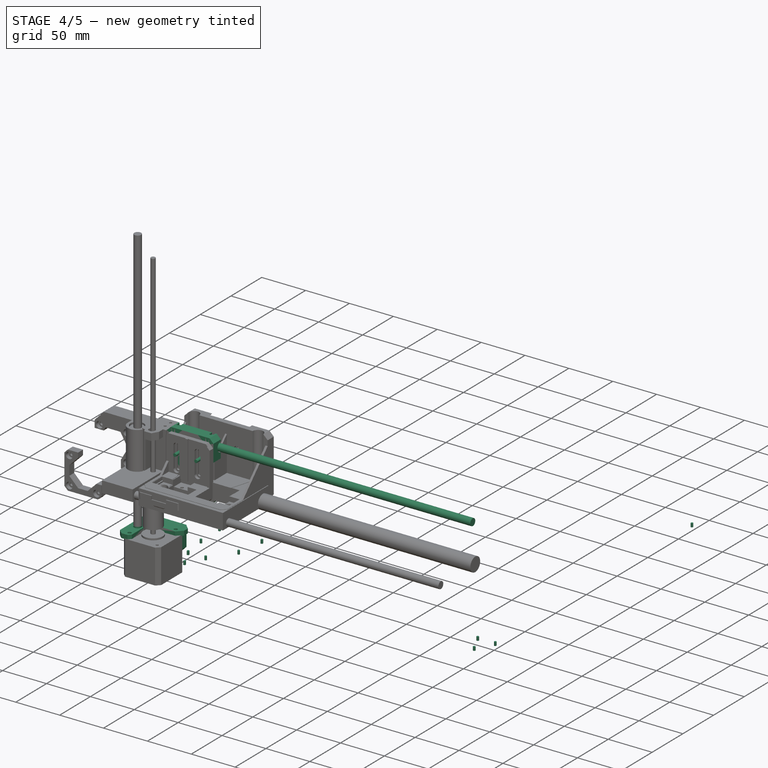
[diagram: stage 4 of 5 — iso view after this stage's code; geometry added in this stage tinted green]
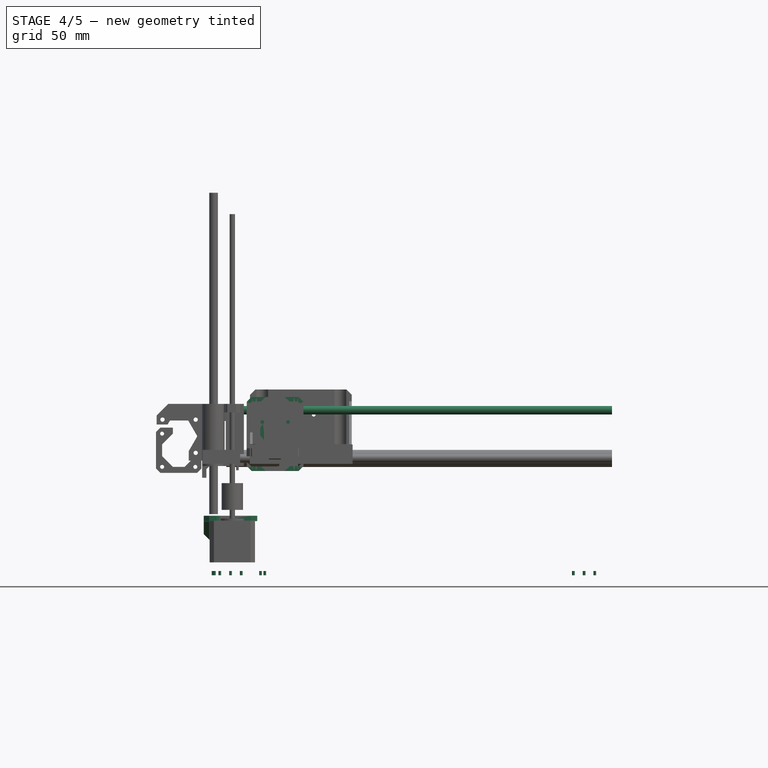
[diagram: stage 4 of 5 — front view after this stage's code; geometry added in this stage tinted green]
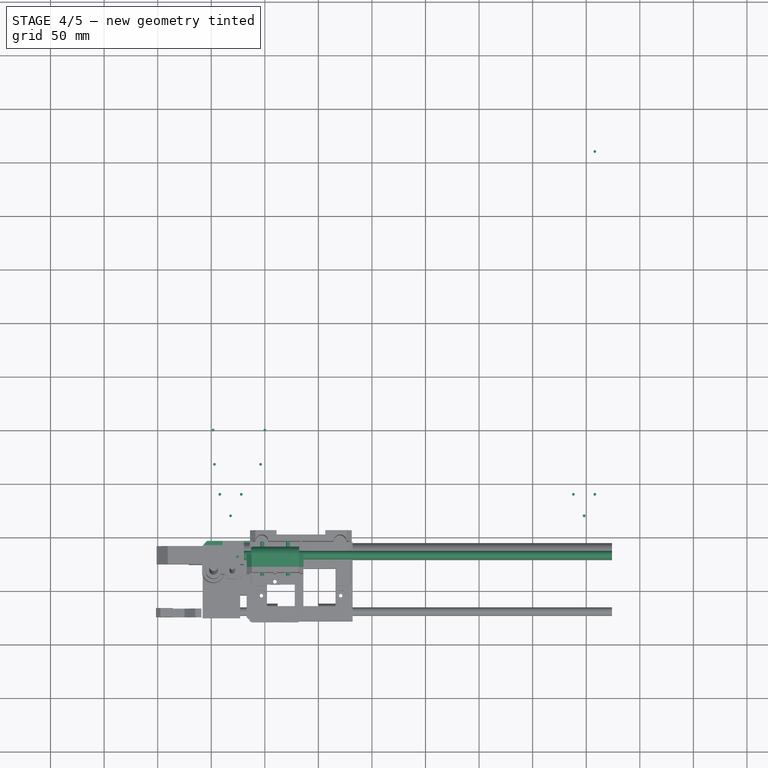
[diagram: stage 4 of 5 — top view after this stage's code; geometry added in this stage tinted green]
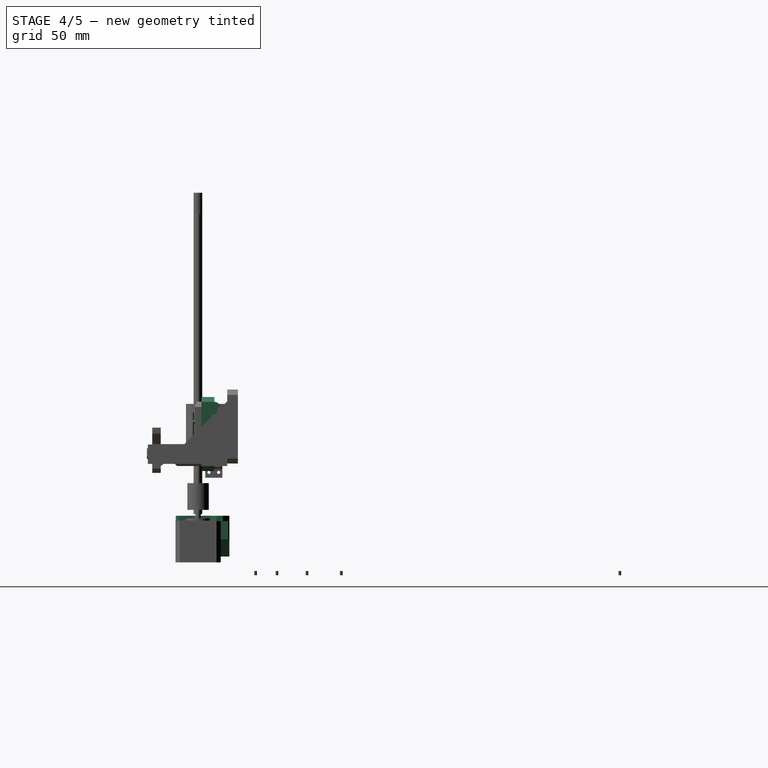
[diagram: stage 4 of 5 — right view after this stage's code; geometry added in this stage tinted green]
FEATURE [Part::Extrusion] Extrude_Sketch017  label="Sketch017_Extrude"
  Base = -> Sketch017
  Dir = (0,0,4)
  Solid = true
FEATURE [Part::Extrusion] Extrude_Sketch018  label="Sketch018_Extrude"
  Base = -> Sketch018
  Dir = (0,0,4)
  Solid = true
FEATURE [Part::Extrusion] Extrude_Sketch019  label="Sketch019_Extrude"
  Base = -> Sketch019
  Dir = (0,0,4)
  Solid = true
FEATURE [Part::Extrusion] Extrude_Sketch020  label="Sketch020_Extrude"
  Base = -> Sketch020
  Dir = (0,0,4)
  Solid = true
FEATURE [Part::Extrusion] Extrude_Sketch021  label="Sketch021_Extrude"
  Base = -> Sketch021
  Dir = (0,0,4)
  Solid = true
FEATURE [Part::Extrusion] Extrude_Sketch022  label="Sketch022_Extrude"
  Base = -> Sketch022
  Dir = (0,0,4)
  Solid = true
FEATURE [Part::Extrusion] Extrude_Sketch023  label="Sketch023_Extrude"
  Base = -> Sketch023
  Dir = (0,0,4)
  Solid = true
FEATURE [Part::Extrusion] Extrude_Sketch024  label="Sketch024_Extrude"
  Base = -> Sketch024
  Dir = (0,0,4)
  Solid = true
FEATURE [Part::Extrusion] Extrude_Sketch025  label="Sketch025_Extrude"
  Base = -> Sketch025
  Dir = (0,0,4)
  Solid = true
FEATURE [Part::Extrusion] Extrude_Sketch026  label="Sketch026_Extrude"
  Base = -> Sketch026
  Dir = (0,0,4)
  Solid = true
FEATURE [Part::Extrusion] Extrude_Sketch027  label="Sketch027_Extrude"
  Base = -> Sketch027
  Dir = (0,0,4)
  Solid = true
FEATURE [Part::Feature] Pocket  label="Z_bottom"
  Placement = pos=(368,-4,55.5) rot=(-0.707107,0.707107,0;3.14159rad)
  shape: bbox 50 x 50 x 38 mm, 267 faces (baked)
FEATURE [Part::Mirroring] Part__Mirroring  label="Z_bottom (Mirror #1)"
  Base = (7.62939e-06,-29,36.5)
  Normal = (1,0,-1.19209e-07)
  Placement = pos=(366,0,0) rot=(0,0,1;0rad)
  Source = -> Pocket
FEATURE [App::DocumentObjectGroup] Group  label="Marco"
  Group = -> [Cut001]
FEATURE [Part::Feature] Solid  label="xCarriage"
  Placement = pos=(300,-30,631) rot=(0,0.707107,0.707107;3.14159rad)
  shape: bbox 53 x 17 x 69 mm, 2615 faces (baked)
FEATURE [Part::Feature] Solid001  label="xIdler"
  Placement = pos=(-16.8,574.5,160) rot=(0.707107,-0.707107,0;3.14159rad)
  shape: bbox 39 x 32 x 60 mm, 2892 faces (baked)
FEATURE [Part::Feature] Solid002  label="xMotor"
  Placement = pos=(-383,88,160) rot=(0.707107,-0.707107,0;3.14159rad)
  shape: bbox 82.5 x 32 x 60 mm, 5090 faces (baked)
FEATURE [Part::Cylinder] Cylinder  label="Varilla8mm"
  Angle = 360
  Height = 360
  Placement = pos=(14,-19,109) rot=(0,1,0;1.5708rad)
  Radius = 4
FEATURE [Part::Cylinder] Cylinder001  label="Varilla8mm001"
  Angle = 360
  Height = 360
  Placement = pos=(14,-19,154) rot=(0,1,0;1.5708rad)
  Radius = 4
FEATURE [Part::Cylinder] Cylinder002  label="lm8UU"
  Angle = 360
  Height = 45
  Placement = pos=(44,-19,89) rot=(0,1,0;1.5708rad)
  Radius = 8
FEATURE [Part::Cylinder] Cylinder003  label="lm8UU001"
  Angle = 360
  Height = 45
  Placement = pos=(44,-19,134) rot=(0,1,0;1.5708rad)
  Radius = 8
FEATURE [Part::Compound] Compound  label="xCarriageC"
  Links = -> [Cylinder002,Cylinder003,Solid]
  Placement = pos=(-7,0,20) rot=(0,0,1;0rad)
FEATURE [Part::Cylinder] Cylinder004
  Angle = 360
  Height = 32
  Placement = pos=(71.67,-6,143) rot=(1,0,0;1.5708rad)
  Radius = 1.75
FEATURE [Part::Cylinder] Cylinder005
  Angle = 360
  Height = 32
  Placement = pos=(47.67,-6,143) rot=(1,0,0;1.5708rad)
  Radius = 1.75
FEATURE [PartDesign::Chamfer] Chamfer006
  Base = -> Chamfer005 [Edge83]
  Size = 2
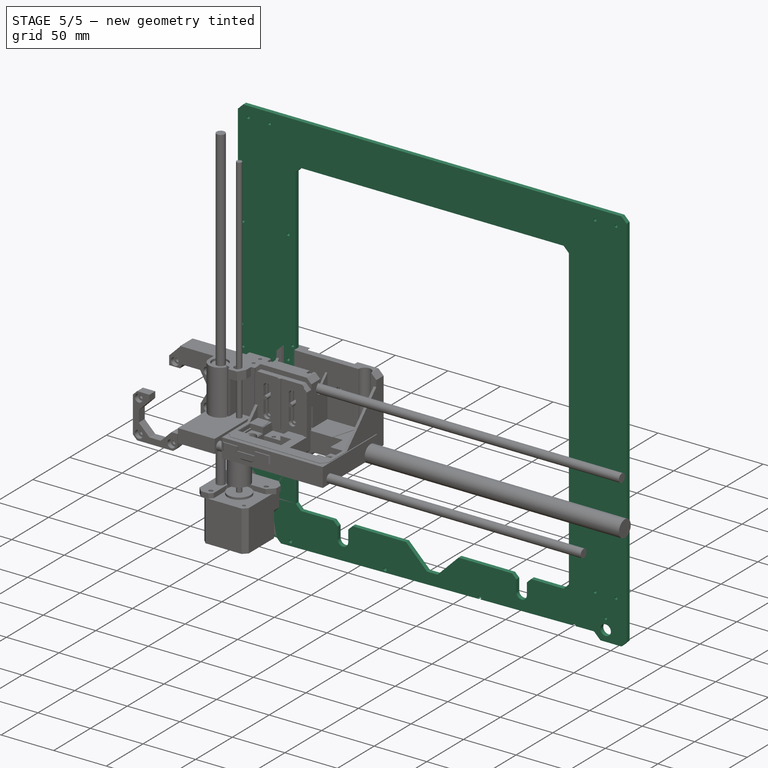
[diagram: stage 5 of 5 — iso view after this stage's code; geometry added in this stage tinted green]
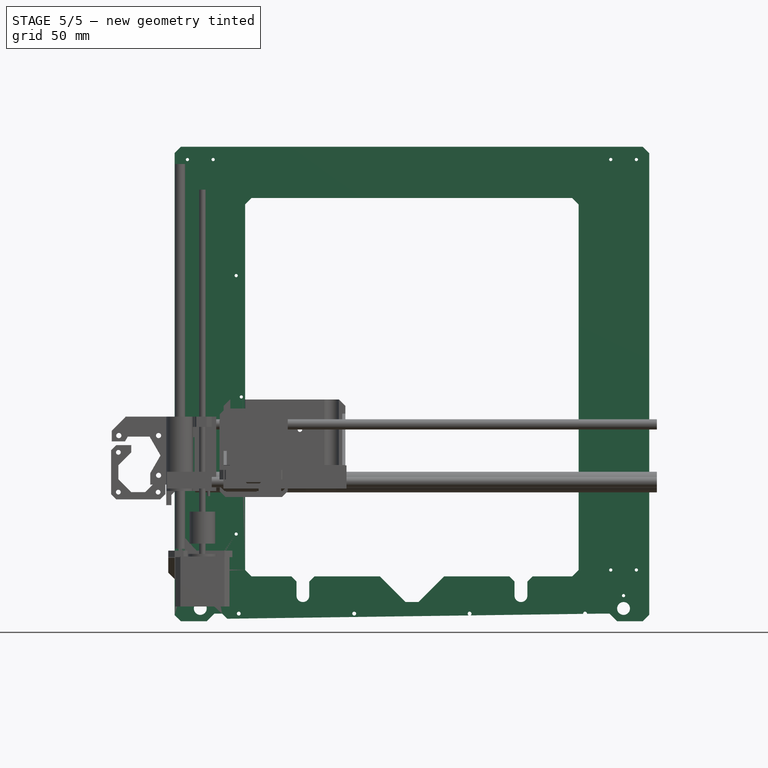
[diagram: stage 5 of 5 — front view after this stage's code; geometry added in this stage tinted green]
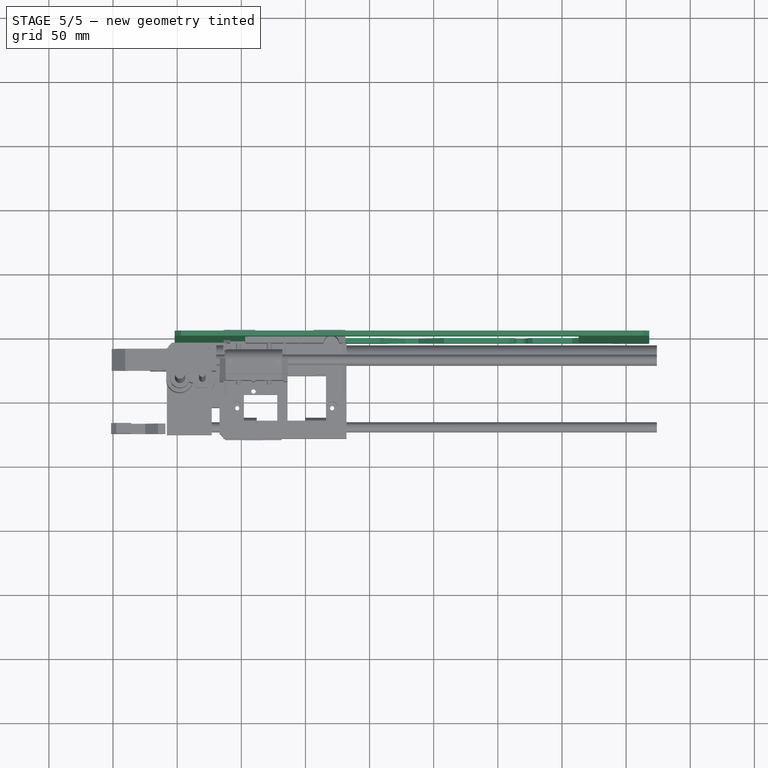
[diagram: stage 5 of 5 — top view after this stage's code; geometry added in this stage tinted green]
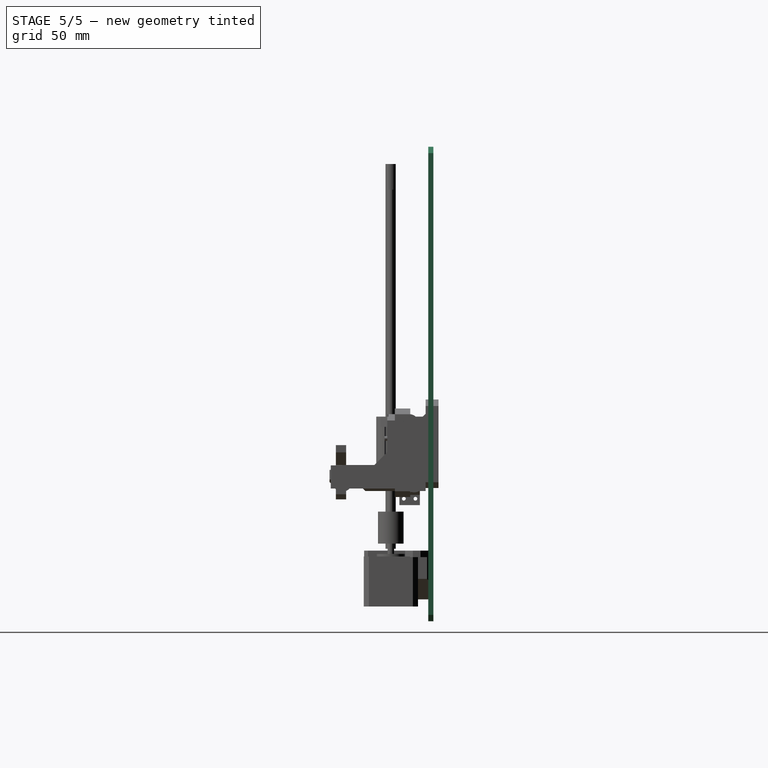
[diagram: stage 5 of 5 — right view after this stage's code; geometry added in this stage tinted green]
FEATURE [Sketcher::SketchObject] Sketch
  sketch-geometry (15):
    g0: LineSegment StartX=39.0156 StartY=2.45283 StartZ=0 EndX=331.016 EndY=6.45283 EndZ=0
    g1: LineSegment StartX=331.016 StartY=6.45283 StartZ=0 EndX=337.016 EndY=6.45283 EndZ=0
    g2: LineSegment StartX=337.016 StartY=6.45283 StartZ=0 EndX=343.016 EndY=0.452828 EndZ=0
    g3: LineSegment StartX=343.016 StartY=0.452828 StartZ=0 EndX=363.016 EndY=0.452828 EndZ=0
    g4: LineSegment StartX=363.016 StartY=0.452828 StartZ=0 EndX=368.016 EndY=5.45283 EndZ=0
    g5: LineSegment StartX=368.016 StartY=5.45283 StartZ=0 EndX=368.016 EndY=365.453 EndZ=0
    g6: LineSegment StartX=368.016 StartY=365.453 StartZ=0 EndX=363.016 EndY=370.453 EndZ=0
    g7: LineSegment StartX=363.016 StartY=370.453 StartZ=0 EndX=3.01558 EndY=370.453 EndZ=0
    g8: LineSegment StartX=3.01558 StartY=370.453 StartZ=0 EndX=-1.98442 EndY=365.453 EndZ=0
    g9: LineSegment StartX=-1.98442 StartY=365.453 StartZ=0 EndX=-1.98442 EndY=5.26108 EndZ=0
    g10: LineSegment StartX=-1.98442 StartY=5.26108 StartZ=0 EndX=3.01558 EndY=0.452828 EndZ=0
    g11: LineSegment StartX=3.01558 StartY=0.452828 StartZ=0 EndX=23.0156 EndY=0.452828 EndZ=0
    g12: LineSegment StartX=23.0156 StartY=0.452828 StartZ=0 EndX=29.0156 EndY=6.45283 EndZ=0
    g13: LineSegment StartX=29.0156 StartY=6.45283 StartZ=0 EndX=35.0156 EndY=6.45283 EndZ=0
    g14: LineSegment StartX=35.0156 StartY=6.45283 StartZ=0 EndX=39.0156 EndY=2.45283 EndZ=0
  constraints (19):
    c: Coincident(g0,g1)
    c: Coincident(g1,g2)
    c: Horizontal(g1)
    c: Coincident(g2,g3)
    c: Coincident(g3,g4)
    c: Coincident(g4,g5)
    c: Coincident(g5,g6)
    c: Vertical(g5)
    c: Coincident(g6,g7)
    c: Coincident(g7,g8)
    c: Horizontal(g7)
    c: Coincident(g8,g9)
    c: Coincident(g9,g10)
    c: Coincident(g10,g11)
    c: Coincident(g11,g12)
    c: Coincident(g12,g13)
    c: Coincident(g13,g14)
    c: Horizontal(g13)
    c: Coincident(g14,g0)
FEATURE [Sketcher::SketchObject] Sketch001
  sketch-geometry (24):
    g0: LineSegment StartX=103.016 StartY=20.4528 StartZ=0 EndX=103.016 EndY=31.4528 EndZ=0
    g1: LineSegment StartX=103.016 StartY=31.4528 StartZ=0 EndX=107.016 EndY=35.4528 EndZ=0
    g2: LineSegment StartX=107.016 StartY=35.4528 StartZ=0 EndX=158.016 EndY=35.4528 EndZ=0
    g3: LineSegment StartX=158.016 StartY=35.4528 StartZ=0 EndX=178.016 EndY=15.4528 EndZ=0
    g4: LineSegment StartX=178.016 StartY=15.4528 StartZ=0 EndX=188.016 EndY=15.4528 EndZ=0
    g5: LineSegment StartX=188.016 StartY=15.4528 StartZ=0 EndX=208.016 EndY=35.4528 EndZ=0
    g6: LineSegment StartX=208.016 StartY=35.4528 StartZ=0 EndX=259.016 EndY=35.4528 EndZ=0
    g7: LineSegment StartX=259.016 StartY=35.4528 StartZ=0 EndX=263.016 EndY=31.4528 EndZ=0
    g8: LineSegment StartX=263.016 StartY=31.4528 StartZ=0 EndX=263.016 EndY=20.4528 EndZ=0
    g9: ArcOfCircle CenterX=268.016 CenterY=20.4528 CenterZ=0 NormalX=0 NormalY=0 NormalZ=1 Radius=5 StartAngle=3.14159 EndAngle=6.28319
    g10: LineSegment StartX=273.016 StartY=20.4528 StartZ=0 EndX=273.016 EndY=31.4528 EndZ=0
    g11: LineSegment StartX=273.016 StartY=31.4528 StartZ=0 EndX=277.016 EndY=35.4528 EndZ=0
    g12: LineSegment StartX=277.016 StartY=35.4528 StartZ=0 EndX=308.016 EndY=35.4528 EndZ=0
    g13: LineSegment StartX=308.016 StartY=35.4528 StartZ=0 EndX=313.016 EndY=40.4528 EndZ=0
    g14: LineSegment StartX=313.016 StartY=40.4528 StartZ=0 EndX=313.016 EndY=325.453 EndZ=0
    g15: LineSegment StartX=313.016 StartY=325.453 StartZ=0 EndX=308.016 EndY=330.453 EndZ=0
    g16: LineSegment StartX=308.016 StartY=330.453 StartZ=0 EndX=58.0156 EndY=330.453 EndZ=0
    g17: LineSegment StartX=58.0156 StartY=330.453 StartZ=0 EndX=53.0156 EndY=325.453 EndZ=0
    g18: LineSegment StartX=53.0156 StartY=325.453 StartZ=0 EndX=53.0156 EndY=40.4528 EndZ=0
    g19: LineSegment StartX=53.0156 StartY=40.4528 StartZ=0 EndX=58.0156 EndY=35.4528 EndZ=0
    g20: LineSegment StartX=58.0156 StartY=35.4528 StartZ=0 EndX=89.0156 EndY=35.4528 EndZ=0
    g21: LineSegment StartX=89.0156 StartY=35.4528 StartZ=0 EndX=93.0156 EndY=31.4528 EndZ=0
    g22: LineSegment StartX=93.0156 StartY=31.4528 StartZ=0 EndX=93.0156 EndY=20.4528 EndZ=0
    g23: ArcOfCircle CenterX=98.0156 CenterY=20.4528 CenterZ=0 NormalX=0 NormalY=0 NormalZ=1 Radius=5 StartAngle=3.14159 EndAngle=6.28319
FEATURE [Sketcher::SketchObject] Sketch002
  sketch-geometry (1):
    g0: Circle CenterX=48.0156 CenterY=6.45283 CenterZ=0 NormalX=0 NormalY=0 NormalZ=1 Radius=1.5
FEATURE [Sketcher::SketchObject] Sketch003
  sketch-geometry (1):
    g0: Circle CenterX=318.016 CenterY=6.45283 CenterZ=0 NormalX=0 NormalY=0 NormalZ=1 Radius=1.5
FEATURE [Sketcher::SketchObject] Sketch004
  sketch-geometry (1):
    g0: Circle CenterX=228.016 CenterY=6.45283 CenterZ=0 NormalX=0 NormalY=0 NormalZ=1 Radius=1.5
FEATURE [Sketcher::SketchObject] Sketch005
  sketch-geometry (1):
    g0: Circle CenterX=138.016 CenterY=6.45283 CenterZ=0 NormalX=0 NormalY=0 NormalZ=1 Radius=1.5
FEATURE [Sketcher::SketchObject] Sketch006
  sketch-geometry (1):
    g0: Circle CenterX=18.0156 CenterY=10.4528 CenterZ=0 NormalX=0 NormalY=0 NormalZ=1 Radius=5
FEATURE [Sketcher::SketchObject] Sketch007
  sketch-geometry (1):
    g0: Circle CenterX=348.016 CenterY=10.4528 CenterZ=0 NormalX=0 NormalY=0 NormalZ=1 Radius=5
FEATURE [Sketcher::SketchObject] Sketch008
  sketch-geometry (1):
    g0: Circle CenterX=8.01558 CenterY=360.453 CenterZ=0 NormalX=0 NormalY=0 NormalZ=1 Radius=1.25
FEATURE [Sketcher::SketchObject] Sketch009
  sketch-geometry (1):
    g0: Circle CenterX=28.0156 CenterY=360.453 CenterZ=0 NormalX=0 NormalY=0 NormalZ=1 Radius=1.25
FEATURE [Sketcher::SketchObject] Sketch010
  sketch-geometry (1):
    g0: Circle CenterX=3.01558 CenterY=269.953 CenterZ=0 NormalX=0 NormalY=0 NormalZ=1 Radius=1.25
FEATURE [Sketcher::SketchObject] Sketch011
  sketch-geometry (1):
    g0: Circle CenterX=46.0156 CenterY=269.953 CenterZ=0 NormalX=0 NormalY=0 NormalZ=1 Radius=1.25
FEATURE [Sketcher::SketchObject] Sketch012
  sketch-geometry (1):
    g0: Circle CenterX=50.0156 CenterY=175.383 CenterZ=0 NormalX=0 NormalY=0 NormalZ=1 Radius=1.25
FEATURE [Sketcher::SketchObject] Sketch013
  sketch-geometry (1):
    g0: Circle CenterX=46.0156 CenterY=162.453 CenterZ=0 NormalX=0 NormalY=0 NormalZ=1 Radius=1.25
FEATURE [Sketcher::SketchObject] Sketch014
  sketch-geometry (1):
    g0: Circle CenterX=3.01558 CenterY=162.453 CenterZ=0 NormalX=0 NormalY=0 NormalZ=1 Radius=1.25
FEATURE [Sketcher::SketchObject] Sketch015
  sketch-geometry (1):
    g0: Circle CenterX=1.75558 CenterY=181.733 CenterZ=0 NormalX=0 NormalY=0 NormalZ=1 Radius=1.25
FEATURE [Sketcher::SketchObject] Sketch016
  sketch-geometry (1):
    g0: Circle CenterX=338.016 CenterY=360.453 CenterZ=0 NormalX=0 NormalY=0 NormalZ=1 Radius=1.25
FEATURE [Sketcher::SketchObject] Sketch017
  sketch-geometry (1):
    g0: Circle CenterX=358.016 CenterY=360.453 CenterZ=0 NormalX=0 NormalY=0 NormalZ=1 Radius=1.25
FEATURE [Sketcher::SketchObject] Sketch018
  sketch-geometry (1):
    g0: Circle CenterX=50.0156 CenterY=100.453 CenterZ=0 NormalX=0 NormalY=0 NormalZ=1 Radius=1.25
FEATURE [Sketcher::SketchObject] Sketch019
  sketch-geometry (1):
    g0: Circle CenterX=46.0156 CenterY=68.4528 CenterZ=0 NormalX=0 NormalY=0 NormalZ=1 Radius=1.25
FEATURE [Sketcher::SketchObject] Sketch020
  sketch-geometry (1):
    g0: Circle CenterX=8.01558 CenterY=40.4528 CenterZ=0 NormalX=0 NormalY=0 NormalZ=1 Radius=1.25
FEATURE [Sketcher::SketchObject] Sketch021
  sketch-geometry (1):
    g0: Circle CenterX=28.0156 CenterY=40.4528 CenterZ=0 NormalX=0 NormalY=0 NormalZ=1 Radius=1.25
FEATURE [Sketcher::SketchObject] Sketch022
  sketch-geometry (1):
    g0: Circle CenterX=3.01558 CenterY=68.4528 CenterZ=0 NormalX=0 NormalY=0 NormalZ=1 Radius=1.25
FEATURE [Sketcher::SketchObject] Sketch023
  sketch-geometry (1):
    g0: Circle CenterX=1.75558 CenterY=100.453 CenterZ=0 NormalX=0 NormalY=0 NormalZ=1 Radius=1.25
FEATURE [Sketcher::SketchObject] Sketch024
  sketch-geometry (1):
    g0: Circle CenterX=338.016 CenterY=40.4528 CenterZ=0 NormalX=0 NormalY=0 NormalZ=1 Radius=1.25
FEATURE [Sketcher::SketchObject] Sketch025
  sketch-geometry (1):
    g0: Circle CenterX=358.016 CenterY=40.4528 CenterZ=0 NormalX=0 NormalY=0 NormalZ=1 Radius=1.25
FEATURE [Sketcher::SketchObject] Sketch026
  sketch-geometry (1):
    g0: Circle CenterX=348.016 CenterY=20.4528 CenterZ=0 NormalX=0 NormalY=0 NormalZ=1 Radius=1.25
FEATURE [Sketcher::SketchObject] Sketch027
  sketch-geometry (1):
    g0: Circle CenterX=18.0156 CenterY=20.4528 CenterZ=0 NormalX=0 NormalY=0 NormalZ=1 Radius=1.25
FEATURE [Part::Extrusion] Extrude_Sketch  label="Sketch_Extrude"
  Base = -> Sketch
  Dir = (0,0,4)
  Solid = true
FEATURE [Part::Extrusion] Extrude_Sketch001  label="Sketch001_Extrude"
  Base = -> Sketch001
  Dir = (0,0,4)
  Solid = true
FEATURE [Part::Cut] Cut
  Base = -> Extrude_Sketch
  Tool = -> Extrude_Sketch001
FEATURE [Part::Extrusion] Extrude_Sketch002  label="Sketch002_Extrude"
  Base = -> Sketch002
  Dir = (0,0,4)
  Solid = true
FEATURE [Part::Extrusion] Extrude_Sketch003  label="Sketch003_Extrude"
  Base = -> Sketch003
  Dir = (0,0,4)
  Solid = true
FEATURE [Part::Extrusion] Extrude_Sketch004  label="Sketch004_Extrude"
  Base = -> Sketch004
  Dir = (0,0,4)
  Solid = true
FEATURE [Part::Extrusion] Extrude_Sketch005  label="Sketch005_Extrude"
  Base = -> Sketch005
  Dir = (0,0,4)
  Solid = true
FEATURE [Part::Extrusion] Extrude_Sketch006  label="Sketch006_Extrude"
  Base = -> Sketch006
  Dir = (0,0,4)
  Solid = true
FEATURE [Part::Extrusion] Extrude_Sketch007  label="Sketch007_Extrude"
  Base = -> Sketch007
  Dir = (0,0,4)
  Solid = true
FEATURE [Part::Extrusion] Extrude_Sketch008  label="Sketch008_Extrude"
  Base = -> Sketch008
  Dir = (0,0,4)
  Solid = true
FEATURE [Part::Extrusion] Extrude_Sketch009  label="Sketch009_Extrude"
  Base = -> Sketch009
  Dir = (0,0,4)
  Solid = true
FEATURE [Part::Extrusion] Extrude_Sketch010  label="Sketch010_Extrude"
  Base = -> Sketch010
  Dir = (0,0,4)
  Solid = true
FEATURE [Part::Extrusion] Extrude_Sketch011  label="Sketch011_Extrude"
  Base = -> Sketch011
  Dir = (0,0,4)
  Solid = true
FEATURE [Part::Extrusion] Extrude_Sketch012  label="Sketch012_Extrude"
  Base = -> Sketch012
  Dir = (0,0,4)
  Solid = true
FEATURE [Part::Extrusion] Extrude_Sketch013  label="Sketch013_Extrude"
  Base = -> Sketch013
  Dir = (0,0,4)
  Solid = true
FEATURE [Part::Extrusion] Extrude_Sketch014  label="Sketch014_Extrude"
  Base = -> Sketch014
  Dir = (0,0,4)
  Solid = true
FEATURE [Part::Extrusion] Extrude_Sketch015  label="Sketch015_Extrude"
  Base = -> Sketch015
  Dir = (0,0,4)
  Solid = true
FEATURE [Part::Extrusion] Extrude_Sketch016  label="Sketch016_Extrude"
  Base = -> Sketch016
  Dir = (0,0,4)
  Solid = true
FEATURE [Part::MultiFuse] Fusion
  Shapes = -> [Extrude_Sketch002,Extrude_Sketch005,Extrude_Sketch021,Extrude_Sketch027,Extrude_Sketch020,Extrude_Sketch019,Extrude_Sketch004,Extrude_Sketch026,Extrude_Sketch011,Extrude_Sketch010,Extrude_Sketch014,Extrude_Sketch009,Extrude_Sketch006,Extrude_Sketch024,Extrude_Sketch022,Extrude_Sketch015,Extrude_Sketch013,Extrude_Sketch016,Extrude_Sketch018,Extrude_Sketch025,Extrude_Sketch012,Extrude_Sketch017,+4 more]
FEATURE [Part::Cut] Cut001  label="Marco-aluminio"
  Base = -> Cut
  Placement = pos=(0,0,0) rot=(1,0,0;1.5708rad)
  Tool = -> Fusion
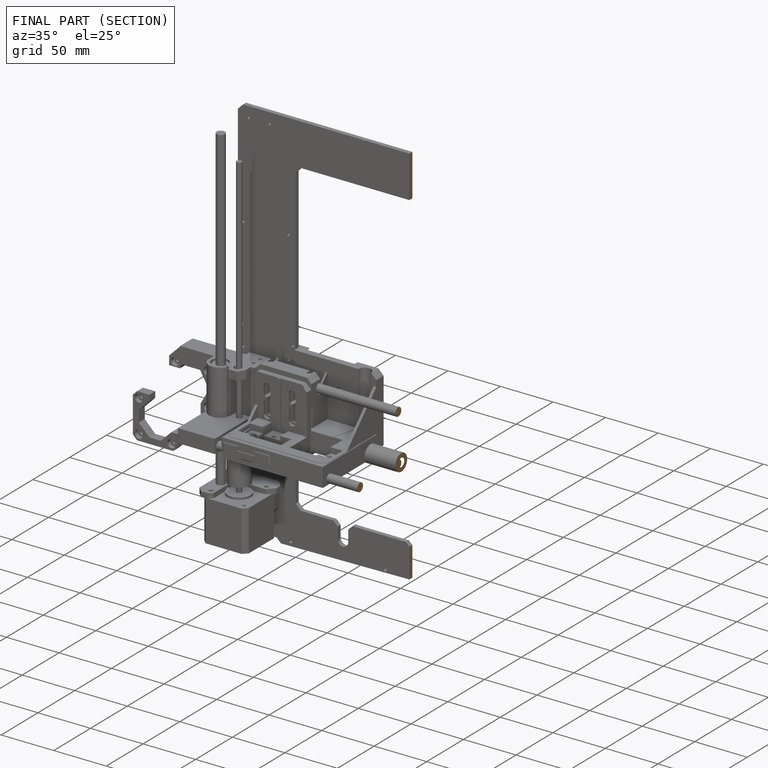
[diagram: finished part — half-section view (interior)]
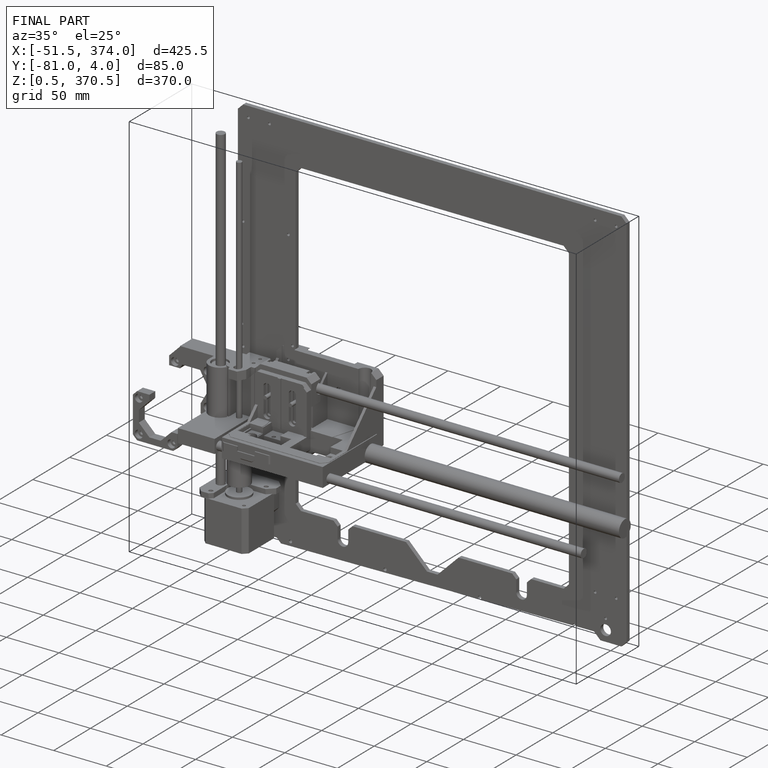
[diagram: finished part — iso view with bounding-box wireframe]
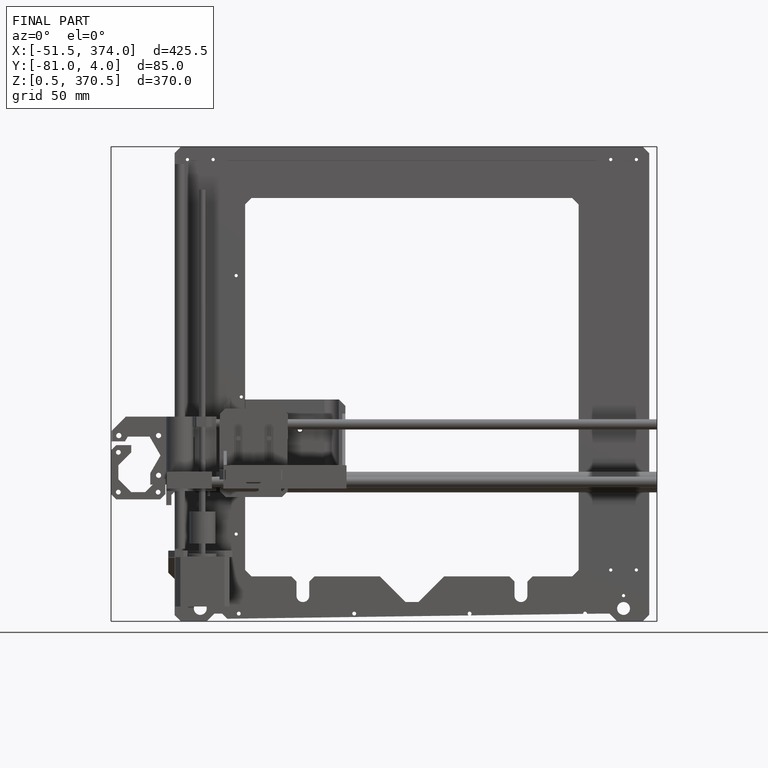
[diagram: finished part — front view with bounding-box wireframe]
